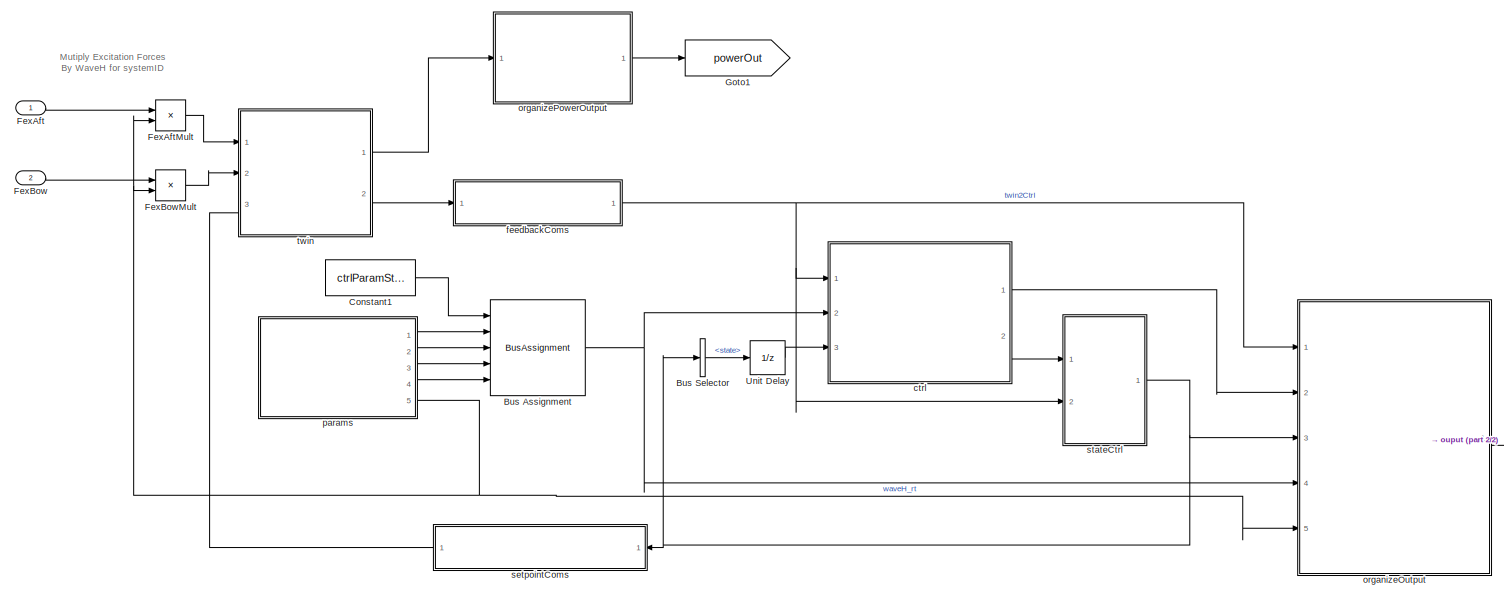
[diagram: root canvas - part 1/2, most of the canvas]
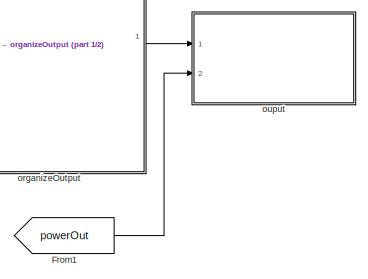
[diagram: root canvas - part 2/2, bottom right region]
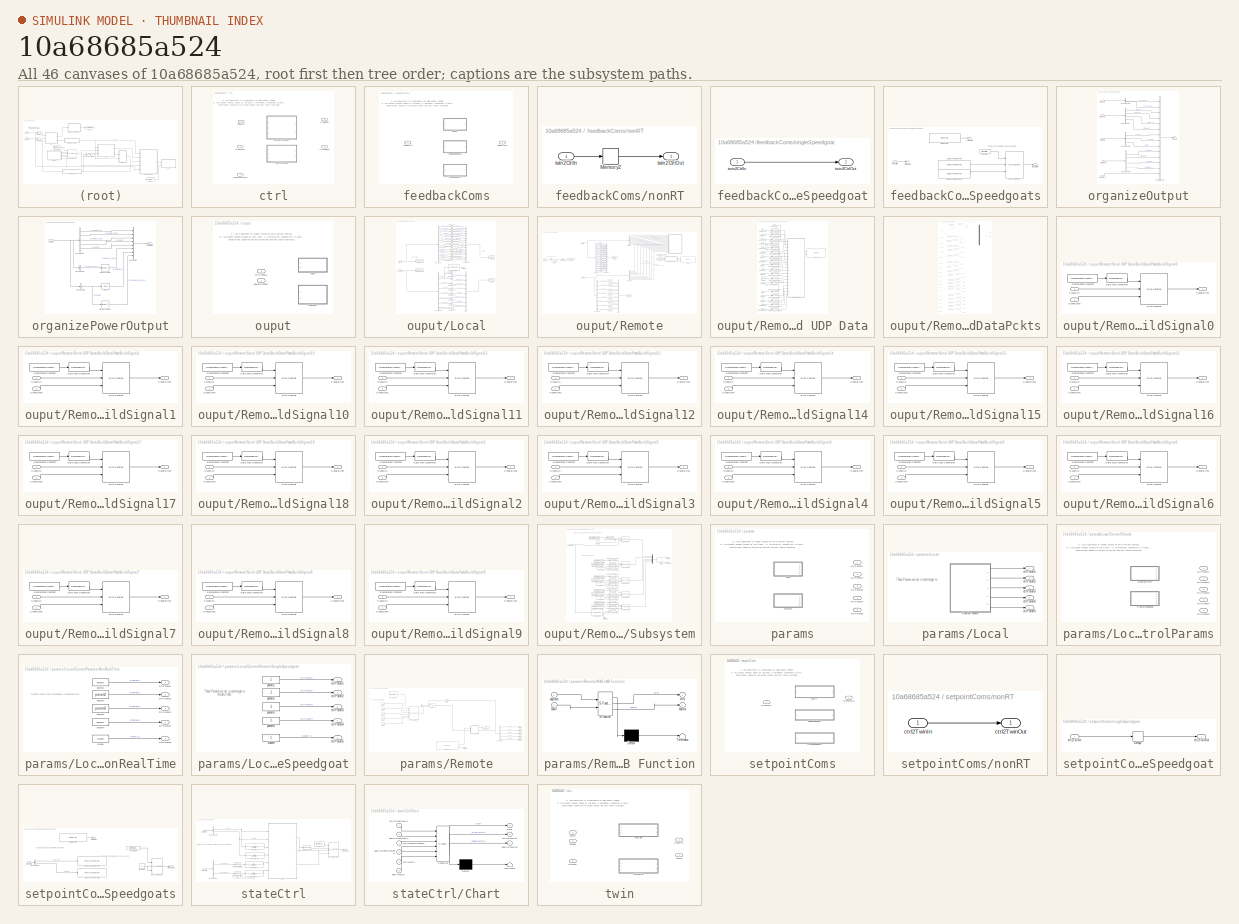
[diagram: thumbnail index - all 46 canvases of the model, root first then tree order]
MODEL slx_10a68685a524
KIND model
CONFIG AbsTol = auto
CONFIG EnableMultiTasking = off
CONFIG FixedStep = Ts
CONFIG MaxStep = auto
CONFIG MinStep = auto
CONFIG RelTol = 1e-3
CONFIG SampleTimeConstraint = Unconstrained
CONFIG SolverName = FixedStepAuto
CONFIG StartTime = 0.0
CONFIG StopTime = 300
BLOCK [BusAssignment] Bus Assignment
  AssignedSignals = ctrlParam1,ctrlParam2,ctrlParam3,ctrlParam4
  Ports = [5, 1]
BLOCK [BusSelector] Bus Selector
  OutputSignals = state
  Ports = [1, 1]
BLOCK [Constant] Constant1
  OutDataTypeStr = Bus: ctrlParamBus
  Value = ctrlParamStruct
  VectorParams1D = off
BLOCK [Inport] FexAft
  Interpolate = off
BLOCK [Product] FexAftMult
  Ports = [2, 1]
BLOCK [Inport] FexBow
  Interpolate = off
  Port = 2
BLOCK [Product] FexBowMult
  Ports = [2, 1]
BLOCK [From] From1
  GotoTag = powerOut
BLOCK [Goto] Goto1
  GotoTag = powerOut
BLOCK [UnitDelay] Unit Delay
  HasFrameUpgradeWarning = on
  SampleTime = -1
BLOCK [SubSystem] ctrl
  LabelModeActiveChoice = defaultCtrlModel
  Ports = [3, 2]
  RequestExecContextInheritance = off
  Variant = on
  VariantControlMode = label
BLOCK [Outport] ctrl/ctrl2TwinOut
  OutDataTypeStr = Bus: ctrl2TwinBus
  Port = 2
BLOCK [Inport] ctrl/ctrlParams
  OutDataTypeStr = Bus: ctrlParamBus
  Port = 2
BLOCK [Outport] ctrl/ctrlSignals
  OutDataTypeStr = Bus: ctrlSignalBus
BLOCK [ModelReference] ctrl/defaultCtrlModel
  ModelNameDialog = defaultCtrlModel
  ModelReferenceVersion = 4.639
  OverrideUsingVariant = defaultCtrlModel
  Ports = [3, 2]
  VariantControl = defaultCtrlModel
BLOCK [Inport] ctrl/supervisorState
  OutDataTypeStr = int32
  Port = 3
BLOCK [Inport] ctrl/twin2Ctrl
  OutDataTypeStr = Bus: twin2CtrlBus
BLOCK [ModelReference] ctrl/userCtrlModel
  ModelNameDialog = ctrlStarter
  ModelReferenceVersion = 3.21
  Ports = [3, 2]
  VariantControl = userCtrlModel
BLOCK [SubSystem] feedbackComs
  LabelModeActiveChoice = nonRT
  Ports = [1, 1]
  RequestExecContextInheritance = off
  Variant = on
  VariantControlMode = label
BLOCK [SubSystem] feedbackComs/nonRT
  Ports = [1, 1]
  RequestExecContextInheritance = off
  VariantControl = nonRT
BLOCK [Memory] feedbackComs/nonRT/Memory2
BLOCK [Inport] feedbackComs/nonRT/twin2CtrlIn
  OutDataTypeStr = Bus: twin2CtrlBus
BLOCK [Outport] feedbackComs/nonRT/twin2CtrlOut
  OutDataTypeStr = Bus: twin2CtrlBus
BLOCK [SubSystem] feedbackComs/singleSpeedgoat
  Ports = [1, 1]
  RequestExecContextInheritance = off
  VariantControl = singleSpeedgoat
BLOCK [Inport] feedbackComs/singleSpeedgoat/twin2CtrlIn
  OutDataTypeStr = Bus: twin2CtrlBus
BLOCK [Outport] feedbackComs/singleSpeedgoat/twin2CtrlOut
  OutDataTypeStr = Bus: twin2CtrlBus
BLOCK [Inport] feedbackComs/twin2CtrlIn
  OutDataTypeStr = Bus: twin2CtrlBus
BLOCK [Outport] feedbackComs/twin2CtrlOut
  OutDataTypeStr = Bus: twin2CtrlBus
BLOCK [SubSystem] feedbackComs/twoSpeedgoats
  Ports = [1, 1]
  RequestExecContextInheritance = off
  VariantControl = twoSpeedgoats
BLOCK [BusAssignment] feedbackComs/twoSpeedgoats/Bus Assignment
  AssignedSignals = posFlapBow,posFlapAft
  Ports = [3, 1]
BLOCK [Constant] feedbackComs/twoSpeedgoats/Constant
  OutDataTypeStr = Bus: twin2CtrlBus
  Value = twin2CtrlStruct
BLOCK [Reference] feedbackComs/twoSpeedgoats/EtherCAT Init  REF=slrealtimeethercatlib/EtherCAT Init
  Ports = [0, 1]
  Priority = 0
  SourceBlock = slrealtimeethercatlib/EtherCAT Init
  SourceProductBaseCode = XP
  SourceType = ethercatinit
BLOCK [Reference] feedbackComs/twoSpeedgoats/EtherCAT PDO Receive  REF=slrealtimeethercatlib/EtherCAT PDO Receive
  Ports = [0, 1]
  Priority = 2
  SourceBlock = slrealtimeethercatlib/EtherCAT PDO Receive
  SourceProductBaseCode = XP
  SourceType = ethercat_pdo_receive
BLOCK [Reference] feedbackComs/twoSpeedgoats/EtherCAT PDO Receive1  REF=slrealtimeethercatlib/EtherCAT PDO Receive
  Ports = [0, 1]
  Priority = 2
  SourceBlock = slrealtimeethercatlib/EtherCAT PDO Receive
  SourceProductBaseCode = XP
  SourceType = ethercat_pdo_receive
BLOCK [Terminator] feedbackComs/twoSpeedgoats/Terminator
BLOCK [Terminator] feedbackComs/twoSpeedgoats/Terminator1
BLOCK [Inport] feedbackComs/twoSpeedgoats/twin2CtrlIn
  OutDataTypeStr = Bus: twin2CtrlBus
BLOCK [Outport] feedbackComs/twoSpeedgoats/twin2CtrlOut
BLOCK [SubSystem] organizeOutput
  Ports = [5, 1]
  RequestExecContextInheritance = off
BLOCK [BusSelector] organizeOutput/Bus Selector
  OutputSignals = ctrlSignal1,ctrlSignal2,ctrlSignal3,ctrlSignal4
  Ports = [1, 4]
BLOCK [BusSelector] organizeOutput/Bus Selector2
  OutputSignals = curAft,curBow,state
  Ports = [1, 3]
BLOCK [BusSelector] organizeOutput/Bus Selector3
  OutputSignals = posFlapAft,posFlapBow
  Ports = [1, 2]
BLOCK [BusSelector] organizeOutput/Bus Selector4
  OutputSignals = ctrlParam1,ctrlParam2,ctrlParam3,ctrlParam4
  Ports = [1, 4]
BLOCK [BusCreator] organizeOutput/ControlSignals
  DisplayOption = bar
  InheritFromInputs = on
  Inputs = 14
  Ports = [14, 1]
BLOCK [Inport] organizeOutput/ctrl2Twin
  Port = 3
BLOCK [Inport] organizeOutput/ctrlParams
  Port = 4
BLOCK [Inport] organizeOutput/ctrlSignals
  OutDataTypeStr = Bus: ctrlSignalBus
  Port = 2
BLOCK [Outport] organizeOutput/signals
BLOCK [Inport] organizeOutput/twin2Ctrl
  OutDataTypeStr = Bus: twin2CtrlBus
BLOCK [Inport] organizeOutput/waveH_rt
  Port = 5
BLOCK [SubSystem] organizePowerOutput
  Ports = [1, 1]
  RequestExecContextInheritance = off
BLOCK [BusCreator] organizePowerOutput/Bus Creator
  DisplayOption = bar
  InheritFromInputs = on
  Inputs = 8
  Ports = [8, 1]
BLOCK [BusSelector] organizePowerOutput/Bus Selector
  OutputSignals = powerMechAft,powerMechBow,powerMechTotal,powerI2R,powerNet
  Ports = [1, 5]
BLOCK [BusSelector] organizePowerOutput/Bus Selector1
  OutputSignals = powerMechTotal
  Ports = [1, 1]
BLOCK [BusSelector] organizePowerOutput/Bus Selector2
  OutputSignals = powerNet
  Ports = [1, 1]
BLOCK [Reference] organizePowerOutput/Mean  REF=dspstat3/Mean
  Ports = [1, 1]
  SourceBlock = dspstat3/Mean
  SourceProductBaseCode = DS
  SourceType = Mean
  UserDataPersistent = on
BLOCK [Reference] organizePowerOutput/Moving Average  REF=dspstat3/Moving
Average
  Ports = [1, 1]
  SourceBlock = dspstat3/Moving\nAverage
  SourceProductBaseCode = DS
  SourceType = dsp.simulink.MovingAverage
BLOCK [Reference] organizePowerOutput/Moving Average1  REF=dspstat3/Moving
Average
  Ports = [1, 1]
  SourceBlock = dspstat3/Moving\nAverage
  SourceProductBaseCode = DS
  SourceType = dsp.simulink.MovingAverage
BLOCK [Inport] organizePowerOutput/powerIn
  OutDataTypeStr = Bus: powerBus
BLOCK [Outport] organizePowerOutput/powerOut
BLOCK [SubSystem] ouput
  LabelModeActiveChoice = Local
  Ports = [2]
  RequestExecContextInheritance = off
  Variant = on
  VariantControlMode = label
BLOCK [SubSystem] ouput/Local
  Ports = [2]
  RequestExecContextInheritance = off
  VariantControl = Local
BLOCK [BusSelector] ouput/Local/Bus Selector
  OutputSignals = posFlapAft,posFlapBow,ctrlSignal1,ctrlSignal2,ctrlSignal3,ctrlSignal4,curAft,curBow,state,ctrlParam1,ctrlParam2,ctrlParam3,ctrlParam4,waveH_rt
  Ports = [1, 14]
BLOCK [BusSelector] ouput/Local/Bus Selector1
  OutputSignals = powerMechAft,powerMechBow,powerMechTotal,powerI2R,powerNet,powerMechAverage,powerNetMean,powerNetMovingAverage
  Ports = [1, 8]
BLOCK [BusCreator] ouput/Local/ControlSignals
  DisplayOption = bar
  InheritFromInputs = on
  Inputs = 14
  NameLocation = right
  Ports = [14, 1]
BLOCK [Reference] ouput/Local/Overload Options  REF=slrealtimetgmanagement/Overload Options
  Ports = [1, 1]
  SourceBlock = slrealtimetgmanagement/Overload Options
  SourceProductBaseCode = XP
  SourceType = slrtOverloadOptions
BLOCK [BusCreator] ouput/Local/Power
  DisplayOption = bar
  InheritFromInputs = on
  Inputs = 8
  NameLocation = right
  Ports = [8, 1]
BLOCK [SignalConversion] ouput/Local/Signal Copy1
  OverrideOpt = off
BLOCK [SignalConversion] ouput/Local/Signal Copy10
  OverrideOpt = off
BLOCK [SignalConversion] ouput/Local/Signal Copy11
  OverrideOpt = off
BLOCK [SignalConversion] ouput/Local/Signal Copy12
  OverrideOpt = off
BLOCK [SignalConversion] ouput/Local/Signal Copy13
  OverrideOpt = off
BLOCK [SignalConversion] ouput/Local/Signal Copy14
  OverrideOpt = off
BLOCK [SignalConversion] ouput/Local/Signal Copy16
  OverrideOpt = off
BLOCK [SignalConversion] ouput/Local/Signal Copy17
  OverrideOpt = off
BLOCK [SignalConversion] ouput/Local/Signal Copy18
  OverrideOpt = off
BLOCK [SignalConversion] ouput/Local/Signal Copy19
  OverrideOpt = off
BLOCK [SignalConversion] ouput/Local/Signal Copy2
  OverrideOpt = off
BLOCK [SignalConversion] ouput/Local/Signal Copy20
  OverrideOpt = off
BLOCK [SignalConversion] ouput/Local/Signal Copy21
  OverrideOpt = off
BLOCK [SignalConversion] ouput/Local/Signal Copy22
  OverrideOpt = off
BLOCK [SignalConversion] ouput/Local/Signal Copy23
  OverrideOpt = off
BLOCK [SignalConversion] ouput/Local/Signal Copy3
  OverrideOpt = off
BLOCK [SignalConversion] ouput/Local/Signal Copy4
  OverrideOpt = off
BLOCK [SignalConversion] ouput/Local/Signal Copy5
  OverrideOpt = off
BLOCK [SignalConversion] ouput/Local/Signal Copy6
  OverrideOpt = off
BLOCK [SignalConversion] ouput/Local/Signal Copy7
  OverrideOpt = off
BLOCK [SignalConversion] ouput/Local/Signal Copy8
  OverrideOpt = off
BLOCK [SignalConversion] ouput/Local/Signal Copy9
  OverrideOpt = off
BLOCK [Terminator] ouput/Local/Terminator
BLOCK [ToWorkspace] ouput/Local/To Workspace
  FixptAsFi = on
  MaxDataPoints = inf
  Ports = [1]
  SampleTime = -1
  SaveFormat = Timeseries
  VariableName = ControlSignals
BLOCK [ToWorkspace] ouput/Local/To Workspace1
  FixptAsFi = on
  MaxDataPoints = inf
  Ports = [1]
  SampleTime = -1
  SaveFormat = Timeseries
  VariableName = Power
BLOCK [Reference] ouput/Local/control  REF=slrealtimeloglib/File Log
  Ports = [1]
  SourceBlock = slrealtimeloglib/File Log
  SourceProductBaseCode = XP
  SourceType = slrealtimeloggingblock
BLOCK [Inport] ouput/Local/ctrlSignals
BLOCK [Reference] ouput/Local/power  REF=slrealtimeloglib/File Log
  Ports = [1]
  SourceBlock = slrealtimeloglib/File Log
  SourceProductBaseCode = XP
  SourceType = slrealtimeloggingblock
BLOCK [Inport] ouput/Local/powerSignals
  Port = 2
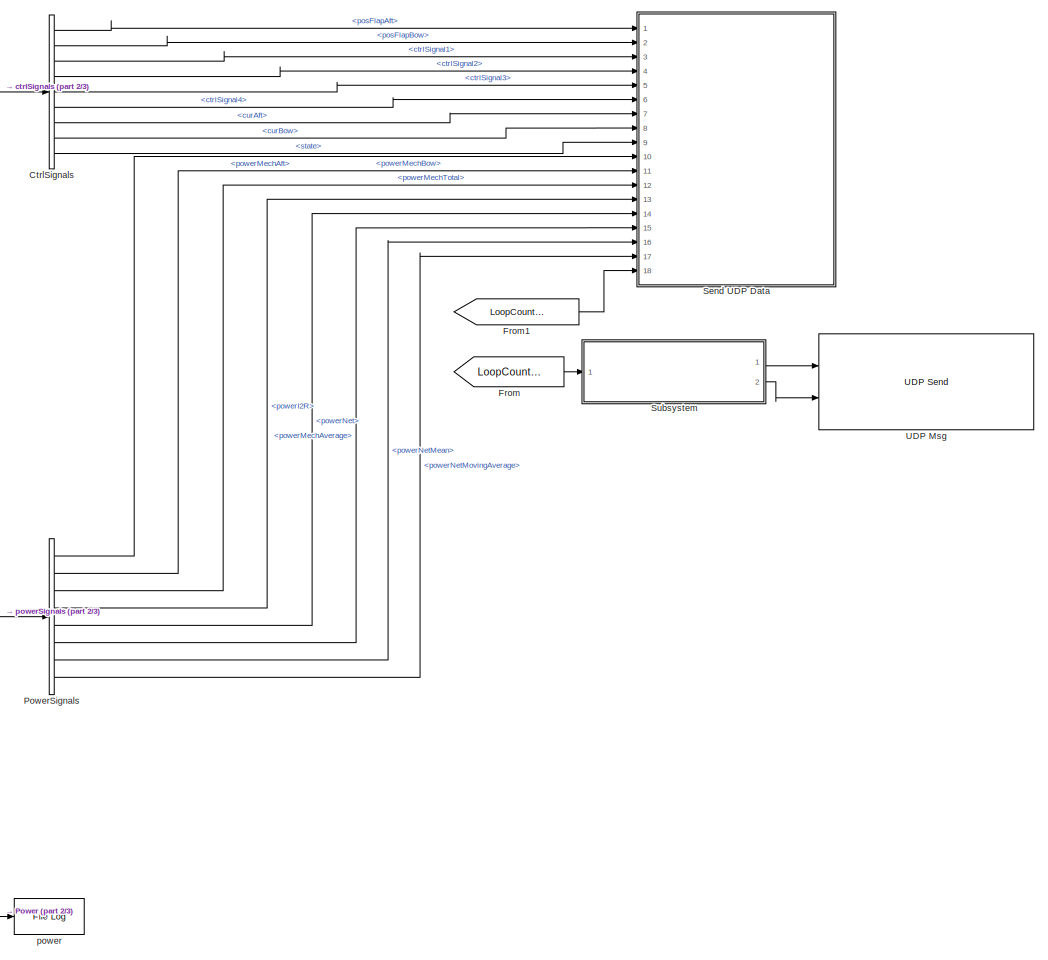
[diagram: ouput/Remote - part 1/3, right side, full height]
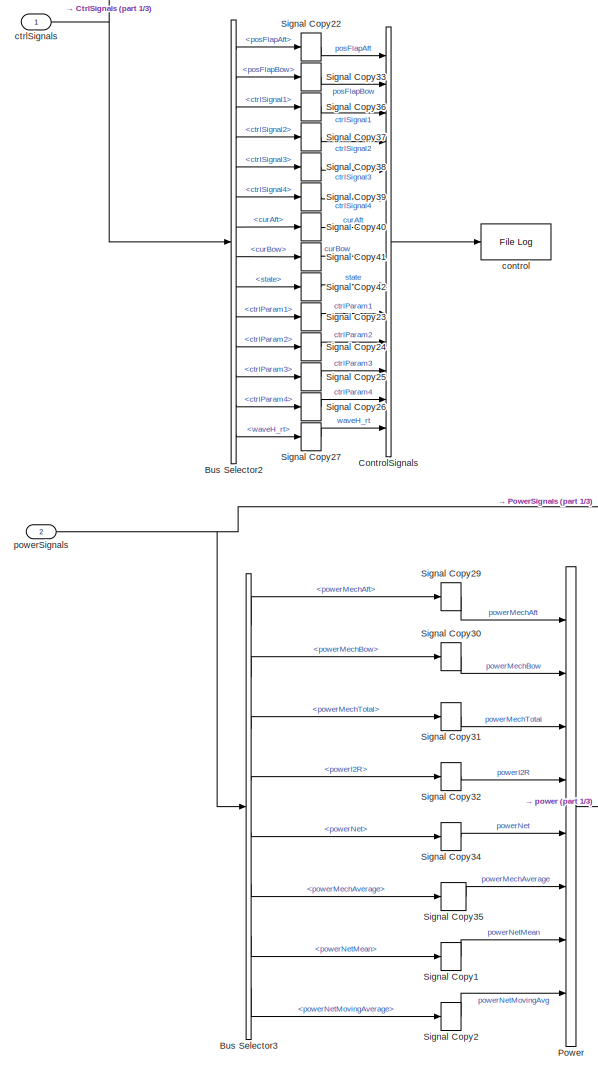
[diagram: ouput/Remote - part 2/3, center side, full height]
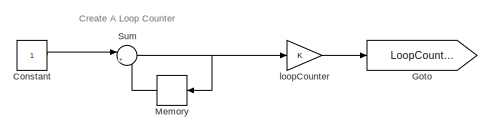
[diagram: ouput/Remote - part 3/3, middle left region]
BLOCK [SubSystem] ouput/Remote
  Ports = [2]
  RequestExecContextInheritance = off
  VariantControl = Remote
BLOCK [BusSelector] ouput/Remote/Bus Selector2
  OutputSignals = posFlapAft,posFlapBow,ctrlSignal1,ctrlSignal2,ctrlSignal3,ctrlSignal4,curAft,curBow,state,ctrlParam1,ctrlParam2,ctrlParam3,ctrlParam4,waveH_rt
  Ports = [1, 14]
BLOCK [BusSelector] ouput/Remote/Bus Selector3
  OutputSignals = powerMechAft,powerMechBow,powerMechTotal,powerI2R,powerNet,powerMechAverage,powerNetMean,powerNetMovingAverage
  Ports = [1, 8]
BLOCK [Constant] ouput/Remote/Constant
  SampleTime = Ts
BLOCK [BusCreator] ouput/Remote/ControlSignals
  DisplayOption = bar
  InheritFromInputs = on
  Inputs = 14
  NameLocation = right
  Ports = [14, 1]
BLOCK [BusSelector] ouput/Remote/CtrlSignals
  OutputSignals = posFlapAft,posFlapBow,ctrlSignal1,ctrlSignal2,ctrlSignal3,ctrlSignal4,curAft,curBow,state
  Ports = [1, 9]
BLOCK [From] ouput/Remote/From
  GotoTag = LoopCounter
BLOCK [From] ouput/Remote/From1
  GotoTag = LoopCounter
BLOCK [Goto] ouput/Remote/Goto
  GotoTag = LoopCounter
BLOCK [Memory] ouput/Remote/Memory
BLOCK [BusCreator] ouput/Remote/Power
  DisplayOption = bar
  InheritFromInputs = on
  Inputs = 8
  NameLocation = right
  Ports = [8, 1]
BLOCK [BusSelector] ouput/Remote/PowerSignals
  OutputSignals = powerMechAft,powerMechBow,powerMechTotal,powerI2R,powerNet,powerMechAverage,powerNetMean,powerNetMovingAverage
  Ports = [1, 8]
BLOCK [SubSystem] ouput/Remote/Send UDP Data
  Ports = [18]
  RequestExecContextInheritance = off
BLOCK [Inport] ouput/Remote/Send UDP Data/AftPower
  Port = 10
BLOCK [Inport] ouput/Remote/Send UDP Data/AvgPower
  Port = 15
BLOCK [Inport] ouput/Remote/Send UDP Data/BowPower
  Port = 11
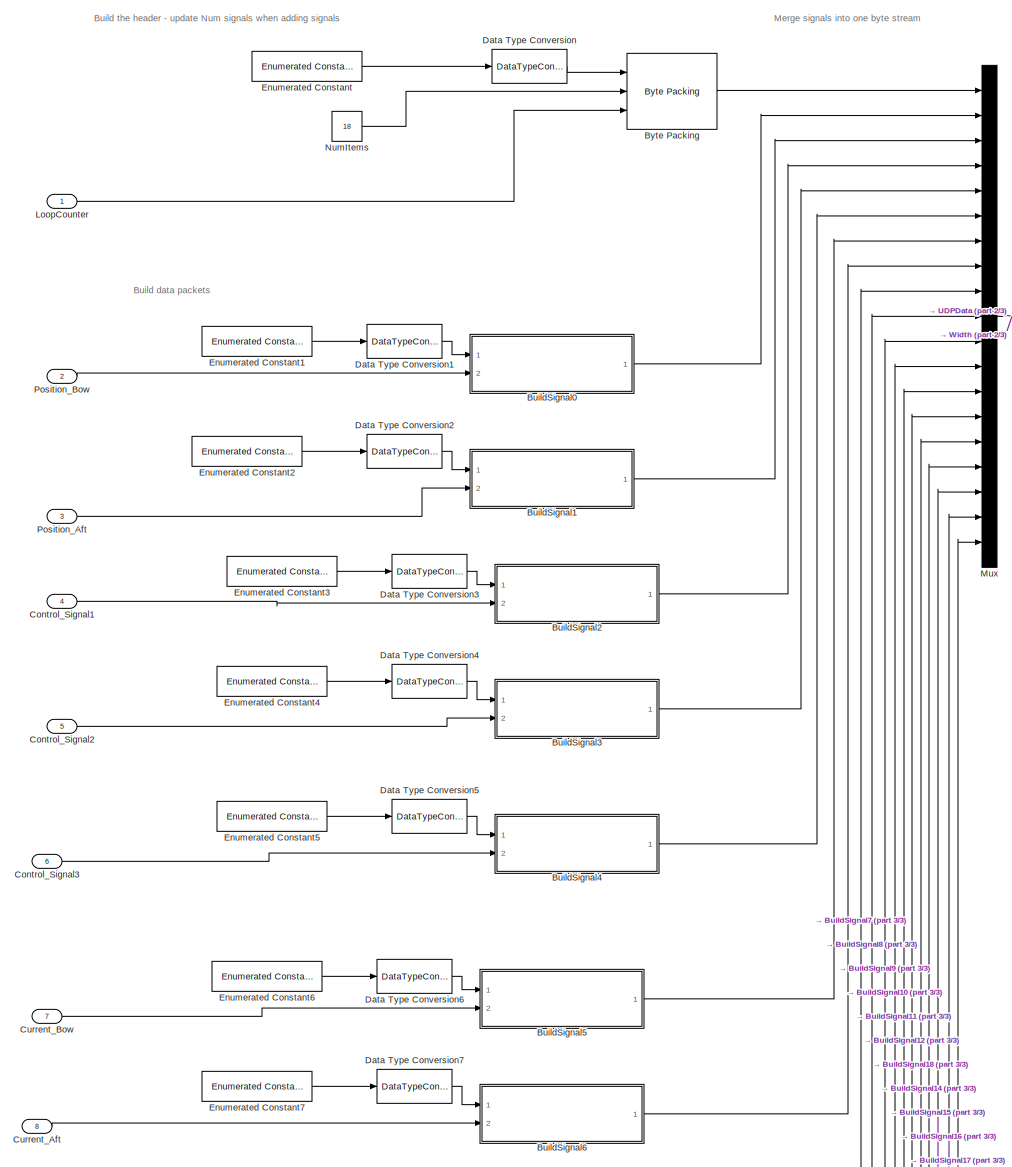
[diagram: ouput/Remote/Send UDP Data/BuildDataPckts - part 1/3, full width, top band]
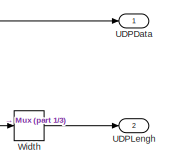
[diagram: ouput/Remote/Send UDP Data/BuildDataPckts - part 2/3, top right region]
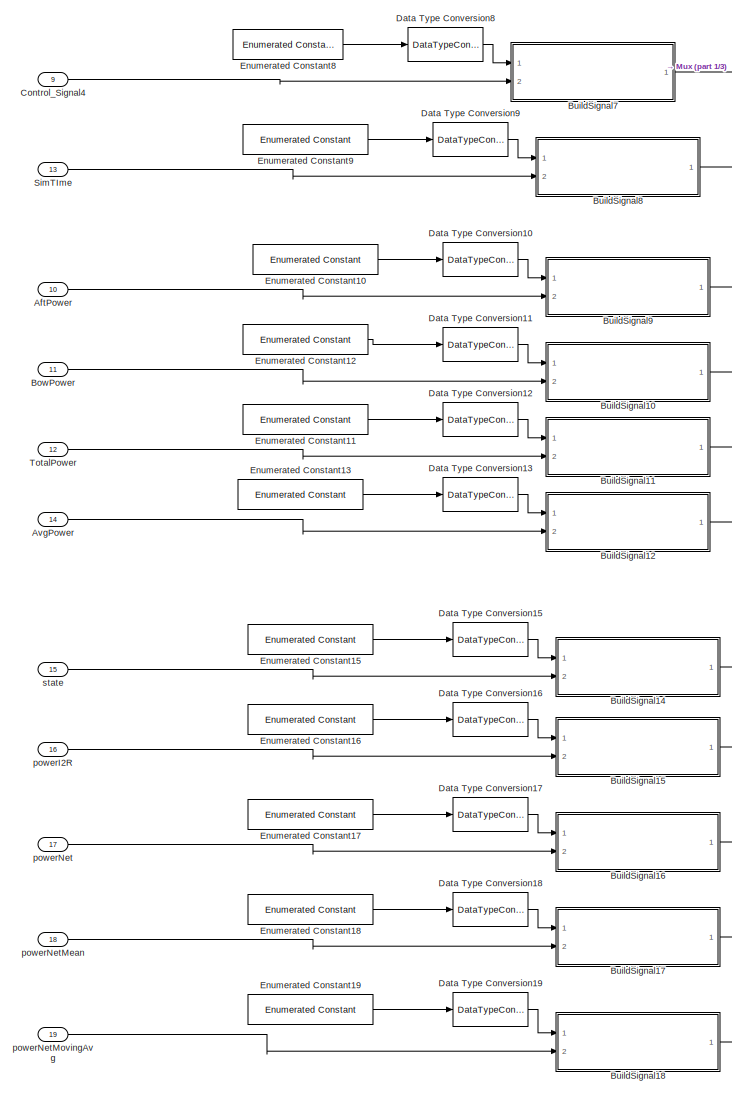
[diagram: ouput/Remote/Send UDP Data/BuildDataPckts - part 3/3, bottom left region]
BLOCK [SubSystem] ouput/Remote/Send UDP Data/BuildDataPckts
  Ports = [19, 2]
  RequestExecContextInheritance = off
BLOCK [Inport] ouput/Remote/Send UDP Data/BuildDataPckts/AftPower
  Port = 10
BLOCK [Inport] ouput/Remote/Send UDP Data/BuildDataPckts/AvgPower
  Port = 14
BLOCK [Inport] ouput/Remote/Send UDP Data/BuildDataPckts/BowPower
  Port = 11
BLOCK [SubSystem] ouput/Remote/Send UDP Data/BuildDataPckts/BuildSignal0
  Ports = [2, 1]
  RequestExecContextInheritance = off
BLOCK [Reference] ouput/Remote/Send UDP Data/BuildDataPckts/BuildSignal0/Byte Packing   REF=slrealtimeutilitieslib/Byte Packing
  Ports = [3, 1]
  SourceBlock = slrealtimeutilitieslib/Byte Packing
  SourceProductBaseCode = XP
  SourceType = slrealtimebytepacking
BLOCK [DataTypeConversion] ouput/Remote/Send UDP Data/BuildDataPckts/BuildSignal0/Data Type Conversion
  OutDataTypeStr = uint8
  RndMeth = Floor
  SaturateOnIntegerOverflow = off
BLOCK [Reference] ouput/Remote/Send UDP Data/BuildDataPckts/BuildSignal0/Enumerated Constant  REF=simulink/Sources/Enumerated
Constant
  Ports = [0, 1]
  SourceBlock = simulink/Sources/Enumerated\nConstant
  SourceProductBaseCode = SL
  SourceType = Enumerated Constant
BLOCK [Outport] ouput/Remote/Send UDP Data/BuildDataPckts/BuildSignal0/SignalBytes
BLOCK [Inport] ouput/Remote/Send UDP Data/BuildDataPckts/BuildSignal0/SignalData
  Port = 2
BLOCK [Inport] ouput/Remote/Send UDP Data/BuildDataPckts/BuildSignal0/SignalNo
BLOCK [SubSystem] ouput/Remote/Send UDP Data/BuildDataPckts/BuildSignal1
  Ports = [2, 1]
  RequestExecContextInheritance = off
BLOCK [Reference] ouput/Remote/Send UDP Data/BuildDataPckts/BuildSignal1/Byte Packing   REF=slrealtimeutilitieslib/Byte Packing
  Ports = [3, 1]
  SourceBlock = slrealtimeutilitieslib/Byte Packing
  SourceProductBaseCode = XP
  SourceType = slrealtimebytepacking
BLOCK [DataTypeConversion] ouput/Remote/Send UDP Data/BuildDataPckts/BuildSignal1/Data Type Conversion
  OutDataTypeStr = uint8
  RndMeth = Floor
  SaturateOnIntegerOverflow = off
BLOCK [Reference] ouput/Remote/Send UDP Data/BuildDataPckts/BuildSignal1/Enumerated Constant  REF=simulink/Sources/Enumerated
Constant
  Ports = [0, 1]
  SourceBlock = simulink/Sources/Enumerated\nConstant
  SourceProductBaseCode = SL
  SourceType = Enumerated Constant
BLOCK [Outport] ouput/Remote/Send UDP Data/BuildDataPckts/BuildSignal1/SignalBytes
BLOCK [Inport] ouput/Remote/Send UDP Data/BuildDataPckts/BuildSignal1/SignalData
  Port = 2
BLOCK [Inport] ouput/Remote/Send UDP Data/BuildDataPckts/BuildSignal1/SignalNo
BLOCK [SubSystem] ouput/Remote/Send UDP Data/BuildDataPckts/BuildSignal10
  Ports = [2, 1]
  RequestExecContextInheritance = off
BLOCK [Reference] ouput/Remote/Send UDP Data/BuildDataPckts/BuildSignal10/Byte Packing   REF=slrealtimeutilitieslib/Byte Packing
  Ports = [3, 1]
  SourceBlock = slrealtimeutilitieslib/Byte Packing
  SourceProductBaseCode = XP
  SourceType = slrealtimebytepacking
BLOCK [DataTypeConversion] ouput/Remote/Send UDP Data/BuildDataPckts/BuildSignal10/Data Type Conversion
  OutDataTypeStr = uint8
  RndMeth = Floor
  SaturateOnIntegerOverflow = off
BLOCK [Reference] ouput/Remote/Send UDP Data/BuildDataPckts/BuildSignal10/Enumerated Constant  REF=simulink/Sources/Enumerated
Constant
  Ports = [0, 1]
  SourceBlock = simulink/Sources/Enumerated\nConstant
  SourceProductBaseCode = SL
  SourceType = Enumerated Constant
BLOCK [Outport] ouput/Remote/Send UDP Data/BuildDataPckts/BuildSignal10/SignalBytes
BLOCK [Inport] ouput/Remote/Send UDP Data/BuildDataPckts/BuildSignal10/SignalData
  Port = 2
BLOCK [Inport] ouput/Remote/Send UDP Data/BuildDataPckts/BuildSignal10/SignalNo
BLOCK [SubSystem] ouput/Remote/Send UDP Data/BuildDataPckts/BuildSignal11
  Ports = [2, 1]
  RequestExecContextInheritance = off
BLOCK [Reference] ouput/Remote/Send UDP Data/BuildDataPckts/BuildSignal11/Byte Packing   REF=slrealtimeutilitieslib/Byte Packing
  Ports = [3, 1]
  SourceBlock = slrealtimeutilitieslib/Byte Packing
  SourceProductBaseCode = XP
  SourceType = slrealtimebytepacking
BLOCK [DataTypeConversion] ouput/Remote/Send UDP Data/BuildDataPckts/BuildSignal11/Data Type Conversion
  OutDataTypeStr = uint8
  RndMeth = Floor
  SaturateOnIntegerOverflow = off
BLOCK [Reference] ouput/Remote/Send UDP Data/BuildDataPckts/BuildSignal11/Enumerated Constant  REF=simulink/Sources/Enumerated
Constant
  Ports = [0, 1]
  SourceBlock = simulink/Sources/Enumerated\nConstant
  SourceProductBaseCode = SL
  SourceType = Enumerated Constant
BLOCK [Outport] ouput/Remote/Send UDP Data/BuildDataPckts/BuildSignal11/SignalBytes
BLOCK [Inport] ouput/Remote/Send UDP Data/BuildDataPckts/BuildSignal11/SignalData
  Port = 2
BLOCK [Inport] ouput/Remote/Send UDP Data/BuildDataPckts/BuildSignal11/SignalNo
BLOCK [SubSystem] ouput/Remote/Send UDP Data/BuildDataPckts/BuildSignal12
  Ports = [2, 1]
  RequestExecContextInheritance = off
BLOCK [Reference] ouput/Remote/Send UDP Data/BuildDataPckts/BuildSignal12/Byte Packing   REF=slrealtimeutilitieslib/Byte Packing
  Ports = [3, 1]
  SourceBlock = slrealtimeutilitieslib/Byte Packing
  SourceProductBaseCode = XP
  SourceType = slrealtimebytepacking
BLOCK [DataTypeConversion] ouput/Remote/Send UDP Data/BuildDataPckts/BuildSignal12/Data Type Conversion
  OutDataTypeStr = uint8
  RndMeth = Floor
  SaturateOnIntegerOverflow = off
BLOCK [Reference] ouput/Remote/Send UDP Data/BuildDataPckts/BuildSignal12/Enumerated Constant  REF=simulink/Sources/Enumerated
Constant
  Ports = [0, 1]
  SourceBlock = simulink/Sources/Enumerated\nConstant
  SourceProductBaseCode = SL
  SourceType = Enumerated Constant
BLOCK [Outport] ouput/Remote/Send UDP Data/BuildDataPckts/BuildSignal12/SignalBytes
BLOCK [Inport] ouput/Remote/Send UDP Data/BuildDataPckts/BuildSignal12/SignalData
  Port = 2
BLOCK [Inport] ouput/Remote/Send UDP Data/BuildDataPckts/BuildSignal12/SignalNo
BLOCK [SubSystem] ouput/Remote/Send UDP Data/BuildDataPckts/BuildSignal14
  Ports = [2, 1]
  RequestExecContextInheritance = off
BLOCK [Reference] ouput/Remote/Send UDP Data/BuildDataPckts/BuildSignal14/Byte Packing   REF=slrealtimeutilitieslib/Byte Packing
  Ports = [3, 1]
  SourceBlock = slrealtimeutilitieslib/Byte Packing
  SourceProductBaseCode = XP
  SourceType = slrealtimebytepacking
BLOCK [DataTypeConversion] ouput/Remote/Send UDP Data/BuildDataPckts/BuildSignal14/Data Type Conversion
  OutDataTypeStr = uint8
  RndMeth = Floor
  SaturateOnIntegerOverflow = off
BLOCK [Reference] ouput/Remote/Send UDP Data/BuildDataPckts/BuildSignal14/Enumerated Constant  REF=simulink/Sources/Enumerated
Constant
  Ports = [0, 1]
  SourceBlock = simulink/Sources/Enumerated\nConstant
  SourceProductBaseCode = SL
  SourceType = Enumerated Constant
BLOCK [Outport] ouput/Remote/Send UDP Data/BuildDataPckts/BuildSignal14/SignalBytes
BLOCK [Inport] ouput/Remote/Send UDP Data/BuildDataPckts/BuildSignal14/SignalData
  Port = 2
BLOCK [Inport] ouput/Remote/Send UDP Data/BuildDataPckts/BuildSignal14/SignalNo
BLOCK [SubSystem] ouput/Remote/Send UDP Data/BuildDataPckts/BuildSignal15
  Ports = [2, 1]
  RequestExecContextInheritance = off
BLOCK [Reference] ouput/Remote/Send UDP Data/BuildDataPckts/BuildSignal15/Byte Packing   REF=slrealtimeutilitieslib/Byte Packing
  Ports = [3, 1]
  SourceBlock = slrealtimeutilitieslib/Byte Packing
  SourceProductBaseCode = XP
  SourceType = slrealtimebytepacking
BLOCK [DataTypeConversion] ouput/Remote/Send UDP Data/BuildDataPckts/BuildSignal15/Data Type Conversion
  OutDataTypeStr = uint8
  RndMeth = Floor
  SaturateOnIntegerOverflow = off
BLOCK [Reference] ouput/Remote/Send UDP Data/BuildDataPckts/BuildSignal15/Enumerated Constant  REF=simulink/Sources/Enumerated
Constant
  Ports = [0, 1]
  SourceBlock = simulink/Sources/Enumerated\nConstant
  SourceProductBaseCode = SL
  SourceType = Enumerated Constant
BLOCK [Outport] ouput/Remote/Send UDP Data/BuildDataPckts/BuildSignal15/SignalBytes
BLOCK [Inport] ouput/Remote/Send UDP Data/BuildDataPckts/BuildSignal15/SignalData
  Port = 2
BLOCK [Inport] ouput/Remote/Send UDP Data/BuildDataPckts/BuildSignal15/SignalNo
BLOCK [SubSystem] ouput/Remote/Send UDP Data/BuildDataPckts/BuildSignal16
  Ports = [2, 1]
  RequestExecContextInheritance = off
BLOCK [Reference] ouput/Remote/Send UDP Data/BuildDataPckts/BuildSignal16/Byte Packing   REF=slrealtimeutilitieslib/Byte Packing
  Ports = [3, 1]
  SourceBlock = slrealtimeutilitieslib/Byte Packing
  SourceProductBaseCode = XP
  SourceType = slrealtimebytepacking
BLOCK [DataTypeConversion] ouput/Remote/Send UDP Data/BuildDataPckts/BuildSignal16/Data Type Conversion
  OutDataTypeStr = uint8
  RndMeth = Floor
  SaturateOnIntegerOverflow = off
BLOCK [Reference] ouput/Remote/Send UDP Data/BuildDataPckts/BuildSignal16/Enumerated Constant  REF=simulink/Sources/Enumerated
Constant
  Ports = [0, 1]
  SourceBlock = simulink/Sources/Enumerated\nConstant
  SourceProductBaseCode = SL
  SourceType = Enumerated Constant
BLOCK [Outport] ouput/Remote/Send UDP Data/BuildDataPckts/BuildSignal16/SignalBytes
BLOCK [Inport] ouput/Remote/Send UDP Data/BuildDataPckts/BuildSignal16/SignalData
  Port = 2
BLOCK [Inport] ouput/Remote/Send UDP Data/BuildDataPckts/BuildSignal16/SignalNo
BLOCK [SubSystem] ouput/Remote/Send UDP Data/BuildDataPckts/BuildSignal17
  Ports = [2, 1]
  RequestExecContextInheritance = off
BLOCK [Reference] ouput/Remote/Send UDP Data/BuildDataPckts/BuildSignal17/Byte Packing   REF=slrealtimeutilitieslib/Byte Packing
  Ports = [3, 1]
  SourceBlock = slrealtimeutilitieslib/Byte Packing
  SourceProductBaseCode = XP
  SourceType = slrealtimebytepacking
BLOCK [DataTypeConversion] ouput/Remote/Send UDP Data/BuildDataPckts/BuildSignal17/Data Type Conversion
  OutDataTypeStr = uint8
  RndMeth = Floor
  SaturateOnIntegerOverflow = off
BLOCK [Reference] ouput/Remote/Send UDP Data/BuildDataPckts/BuildSignal17/Enumerated Constant  REF=simulink/Sources/Enumerated
Constant
  Ports = [0, 1]
  SourceBlock = simulink/Sources/Enumerated\nConstant
  SourceProductBaseCode = SL
  SourceType = Enumerated Constant
BLOCK [Outport] ouput/Remote/Send UDP Data/BuildDataPckts/BuildSignal17/SignalBytes
BLOCK [Inport] ouput/Remote/Send UDP Data/BuildDataPckts/BuildSignal17/SignalData
  Port = 2
BLOCK [Inport] ouput/Remote/Send UDP Data/BuildDataPckts/BuildSignal17/SignalNo
BLOCK [SubSystem] ouput/Remote/Send UDP Data/BuildDataPckts/BuildSignal18
  Ports = [2, 1]
  RequestExecContextInheritance = off
BLOCK [Reference] ouput/Remote/Send UDP Data/BuildDataPckts/BuildSignal18/Byte Packing   REF=slrealtimeutilitieslib/Byte Packing
  Ports = [3, 1]
  SourceBlock = slrealtimeutilitieslib/Byte Packing
  SourceProductBaseCode = XP
  SourceType = slrealtimebytepacking
BLOCK [DataTypeConversion] ouput/Remote/Send UDP Data/BuildDataPckts/BuildSignal18/Data Type Conversion
  OutDataTypeStr = uint8
  RndMeth = Floor
  SaturateOnIntegerOverflow = off
BLOCK [Reference] ouput/Remote/Send UDP Data/BuildDataPckts/BuildSignal18/Enumerated Constant  REF=simulink/Sources/Enumerated
Constant
  Ports = [0, 1]
  SourceBlock = simulink/Sources/Enumerated\nConstant
  SourceProductBaseCode = SL
  SourceType = Enumerated Constant
BLOCK [Outport] ouput/Remote/Send UDP Data/BuildDataPckts/BuildSignal18/SignalBytes
BLOCK [Inport] ouput/Remote/Send UDP Data/BuildDataPckts/BuildSignal18/SignalData
  Port = 2
BLOCK [Inport] ouput/Remote/Send UDP Data/BuildDataPckts/BuildSignal18/SignalNo
BLOCK [SubSystem] ouput/Remote/Send UDP Data/BuildDataPckts/BuildSignal2
  Ports = [2, 1]
  RequestExecContextInheritance = off
BLOCK [Reference] ouput/Remote/Send UDP Data/BuildDataPckts/BuildSignal2/Byte Packing   REF=slrealtimeutilitieslib/Byte Packing
  Ports = [3, 1]
  SourceBlock = slrealtimeutilitieslib/Byte Packing
  SourceProductBaseCode = XP
  SourceType = slrealtimebytepacking
BLOCK [DataTypeConversion] ouput/Remote/Send UDP Data/BuildDataPckts/BuildSignal2/Data Type Conversion
  OutDataTypeStr = uint8
  RndMeth = Floor
  SaturateOnIntegerOverflow = off
BLOCK [Reference] ouput/Remote/Send UDP Data/BuildDataPckts/BuildSignal2/Enumerated Constant  REF=simulink/Sources/Enumerated
Constant
  Ports = [0, 1]
  SourceBlock = simulink/Sources/Enumerated\nConstant
  SourceProductBaseCode = SL
  SourceType = Enumerated Constant
BLOCK [Outport] ouput/Remote/Send UDP Data/BuildDataPckts/BuildSignal2/SignalBytes
BLOCK [Inport] ouput/Remote/Send UDP Data/BuildDataPckts/BuildSignal2/SignalData
  Port = 2
BLOCK [Inport] ouput/Remote/Send UDP Data/BuildDataPckts/BuildSignal2/SignalNo
BLOCK [SubSystem] ouput/Remote/Send UDP Data/BuildDataPckts/BuildSignal3
  Ports = [2, 1]
  RequestExecContextInheritance = off
BLOCK [Reference] ouput/Remote/Send UDP Data/BuildDataPckts/BuildSignal3/Byte Packing   REF=slrealtimeutilitieslib/Byte Packing
  Ports = [3, 1]
  SourceBlock = slrealtimeutilitieslib/Byte Packing
  SourceProductBaseCode = XP
  SourceType = slrealtimebytepacking
BLOCK [DataTypeConversion] ouput/Remote/Send UDP Data/BuildDataPckts/BuildSignal3/Data Type Conversion
  OutDataTypeStr = uint8
  RndMeth = Floor
  SaturateOnIntegerOverflow = off
BLOCK [Reference] ouput/Remote/Send UDP Data/BuildDataPckts/BuildSignal3/Enumerated Constant  REF=simulink/Sources/Enumerated
Constant
  Ports = [0, 1]
  SourceBlock = simulink/Sources/Enumerated\nConstant
  SourceProductBaseCode = SL
  SourceType = Enumerated Constant
BLOCK [Outport] ouput/Remote/Send UDP Data/BuildDataPckts/BuildSignal3/SignalBytes
BLOCK [Inport] ouput/Remote/Send UDP Data/BuildDataPckts/BuildSignal3/SignalData
  Port = 2
BLOCK [Inport] ouput/Remote/Send UDP Data/BuildDataPckts/BuildSignal3/SignalNo
BLOCK [SubSystem] ouput/Remote/Send UDP Data/BuildDataPckts/BuildSignal4
  Ports = [2, 1]
  RequestExecContextInheritance = off
BLOCK [Reference] ouput/Remote/Send UDP Data/BuildDataPckts/BuildSignal4/Byte Packing   REF=slrealtimeutilitieslib/Byte Packing
  Ports = [3, 1]
  SourceBlock = slrealtimeutilitieslib/Byte Packing
  SourceProductBaseCode = XP
  SourceType = slrealtimebytepacking
BLOCK [DataTypeConversion] ouput/Remote/Send UDP Data/BuildDataPckts/BuildSignal4/Data Type Conversion
  OutDataTypeStr = uint8
  RndMeth = Floor
  SaturateOnIntegerOverflow = off
BLOCK [Reference] ouput/Remote/Send UDP Data/BuildDataPckts/BuildSignal4/Enumerated Constant  REF=simulink/Sources/Enumerated
Constant
  Ports = [0, 1]
  SourceBlock = simulink/Sources/Enumerated\nConstant
  SourceProductBaseCode = SL
  SourceType = Enumerated Constant
BLOCK [Outport] ouput/Remote/Send UDP Data/BuildDataPckts/BuildSignal4/SignalBytes
BLOCK [Inport] ouput/Remote/Send UDP Data/BuildDataPckts/BuildSignal4/SignalData
  Port = 2
BLOCK [Inport] ouput/Remote/Send UDP Data/BuildDataPckts/BuildSignal4/SignalNo
BLOCK [SubSystem] ouput/Remote/Send UDP Data/BuildDataPckts/BuildSignal5
  Ports = [2, 1]
  RequestExecContextInheritance = off
BLOCK [Reference] ouput/Remote/Send UDP Data/BuildDataPckts/BuildSignal5/Byte Packing   REF=slrealtimeutilitieslib/Byte Packing
  Ports = [3, 1]
  SourceBlock = slrealtimeutilitieslib/Byte Packing
  SourceProductBaseCode = XP
  SourceType = slrealtimebytepacking
BLOCK [DataTypeConversion] ouput/Remote/Send UDP Data/BuildDataPckts/BuildSignal5/Data Type Conversion
  OutDataTypeStr = uint8
  RndMeth = Floor
  SaturateOnIntegerOverflow = off
BLOCK [Reference] ouput/Remote/Send UDP Data/BuildDataPckts/BuildSignal5/Enumerated Constant  REF=simulink/Sources/Enumerated
Constant
  Ports = [0, 1]
  SourceBlock = simulink/Sources/Enumerated\nConstant
  SourceProductBaseCode = SL
  SourceType = Enumerated Constant
BLOCK [Outport] ouput/Remote/Send UDP Data/BuildDataPckts/BuildSignal5/SignalBytes
BLOCK [Inport] ouput/Remote/Send UDP Data/BuildDataPckts/BuildSignal5/SignalData
  Port = 2
BLOCK [Inport] ouput/Remote/Send UDP Data/BuildDataPckts/BuildSignal5/SignalNo
BLOCK [SubSystem] ouput/Remote/Send UDP Data/BuildDataPckts/BuildSignal6
  Ports = [2, 1]
  RequestExecContextInheritance = off
BLOCK [Reference] ouput/Remote/Send UDP Data/BuildDataPckts/BuildSignal6/Byte Packing   REF=slrealtimeutilitieslib/Byte Packing
  Ports = [3, 1]
  SourceBlock = slrealtimeutilitieslib/Byte Packing
  SourceProductBaseCode = XP
  SourceType = slrealtimebytepacking
BLOCK [DataTypeConversion] ouput/Remote/Send UDP Data/BuildDataPckts/BuildSignal6/Data Type Conversion
  OutDataTypeStr = uint8
  RndMeth = Floor
  SaturateOnIntegerOverflow = off
BLOCK [Reference] ouput/Remote/Send UDP Data/BuildDataPckts/BuildSignal6/Enumerated Constant  REF=simulink/Sources/Enumerated
Constant
  Ports = [0, 1]
  SourceBlock = simulink/Sources/Enumerated\nConstant
  SourceProductBaseCode = SL
  SourceType = Enumerated Constant
BLOCK [Outport] ouput/Remote/Send UDP Data/BuildDataPckts/BuildSignal6/SignalBytes
BLOCK [Inport] ouput/Remote/Send UDP Data/BuildDataPckts/BuildSignal6/SignalData
  Port = 2
BLOCK [Inport] ouput/Remote/Send UDP Data/BuildDataPckts/BuildSignal6/SignalNo
BLOCK [SubSystem] ouput/Remote/Send UDP Data/BuildDataPckts/BuildSignal7
  Ports = [2, 1]
  RequestExecContextInheritance = off
BLOCK [Reference] ouput/Remote/Send UDP Data/BuildDataPckts/BuildSignal7/Byte Packing   REF=slrealtimeutilitieslib/Byte Packing
  Ports = [3, 1]
  SourceBlock = slrealtimeutilitieslib/Byte Packing
  SourceProductBaseCode = XP
  SourceType = slrealtimebytepacking
BLOCK [DataTypeConversion] ouput/Remote/Send UDP Data/BuildDataPckts/BuildSignal7/Data Type Conversion
  OutDataTypeStr = uint8
  RndMeth = Floor
  SaturateOnIntegerOverflow = off
BLOCK [Reference] ouput/Remote/Send UDP Data/BuildDataPckts/BuildSignal7/Enumerated Constant  REF=simulink/Sources/Enumerated
Constant
  Ports = [0, 1]
  SourceBlock = simulink/Sources/Enumerated\nConstant
  SourceProductBaseCode = SL
  SourceType = Enumerated Constant
BLOCK [Outport] ouput/Remote/Send UDP Data/BuildDataPckts/BuildSignal7/SignalBytes
BLOCK [Inport] ouput/Remote/Send UDP Data/BuildDataPckts/BuildSignal7/SignalData
  Port = 2
BLOCK [Inport] ouput/Remote/Send UDP Data/BuildDataPckts/BuildSignal7/SignalNo
BLOCK [SubSystem] ouput/Remote/Send UDP Data/BuildDataPckts/BuildSignal8
  Ports = [2, 1]
  RequestExecContextInheritance = off
BLOCK [Reference] ouput/Remote/Send UDP Data/BuildDataPckts/BuildSignal8/Byte Packing   REF=slrealtimeutilitieslib/Byte Packing
  Ports = [3, 1]
  SourceBlock = slrealtimeutilitieslib/Byte Packing
  SourceProductBaseCode = XP
  SourceType = slrealtimebytepacking
BLOCK [DataTypeConversion] ouput/Remote/Send UDP Data/BuildDataPckts/BuildSignal8/Data Type Conversion
  OutDataTypeStr = uint8
  RndMeth = Floor
  SaturateOnIntegerOverflow = off
BLOCK [Reference] ouput/Remote/Send UDP Data/BuildDataPckts/BuildSignal8/Enumerated Constant  REF=simulink/Sources/Enumerated
Constant
  Ports = [0, 1]
  SourceBlock = simulink/Sources/Enumerated\nConstant
  SourceProductBaseCode = SL
  SourceType = Enumerated Constant
BLOCK [Outport] ouput/Remote/Send UDP Data/BuildDataPckts/BuildSignal8/SignalBytes
BLOCK [Inport] ouput/Remote/Send UDP Data/BuildDataPckts/BuildSignal8/SignalData
  Port = 2
BLOCK [Inport] ouput/Remote/Send UDP Data/BuildDataPckts/BuildSignal8/SignalNo
BLOCK [SubSystem] ouput/Remote/Send UDP Data/BuildDataPckts/BuildSignal9
  Ports = [2, 1]
  RequestExecContextInheritance = off
BLOCK [Reference] ouput/Remote/Send UDP Data/BuildDataPckts/BuildSignal9/Byte Packing   REF=slrealtimeutilitieslib/Byte Packing
  Ports = [3, 1]
  SourceBlock = slrealtimeutilitieslib/Byte Packing
  SourceProductBaseCode = XP
  SourceType = slrealtimebytepacking
BLOCK [DataTypeConversion] ouput/Remote/Send UDP Data/BuildDataPckts/BuildSignal9/Data Type Conversion
  OutDataTypeStr = uint8
  RndMeth = Floor
  SaturateOnIntegerOverflow = off
BLOCK [Reference] ouput/Remote/Send UDP Data/BuildDataPckts/BuildSignal9/Enumerated Constant  REF=simulink/Sources/Enumerated
Constant
  Ports = [0, 1]
  SourceBlock = simulink/Sources/Enumerated\nConstant
  SourceProductBaseCode = SL
  SourceType = Enumerated Constant
BLOCK [Outport] ouput/Remote/Send UDP Data/BuildDataPckts/BuildSignal9/SignalBytes
BLOCK [Inport] ouput/Remote/Send UDP Data/BuildDataPckts/BuildSignal9/SignalData
  Port = 2
BLOCK [Inport] ouput/Remote/Send UDP Data/BuildDataPckts/BuildSignal9/SignalNo
BLOCK [Reference] ouput/Remote/Send UDP Data/BuildDataPckts/Byte Packing   REF=slrealtimeutilitieslib/Byte Packing
  Ports = [3, 1]
  SourceBlock = slrealtimeutilitieslib/Byte Packing
  SourceProductBaseCode = XP
  SourceType = slrealtimebytepacking
BLOCK [Inport] ouput/Remote/Send UDP Data/BuildDataPckts/Control_Signal1
  OutDataTypeStr = single
  Port = 4
BLOCK [Inport] ouput/Remote/Send UDP Data/BuildDataPckts/Control_Signal2
  OutDataTypeStr = single
  Port = 5
BLOCK [Inport] ouput/Remote/Send UDP Data/BuildDataPckts/Control_Signal3
  OutDataTypeStr = single
  Port = 6
BLOCK [Inport] ouput/Remote/Send UDP Data/BuildDataPckts/Control_Signal4
  OutDataTypeStr = single
  Port = 9
BLOCK [Inport] ouput/Remote/Send UDP Data/BuildDataPckts/Current_Aft
  OutDataTypeStr = single
  Port = 8
BLOCK [Inport] ouput/Remote/Send UDP Data/BuildDataPckts/Current_Bow
  OutDataTypeStr = single
  Port = 7
BLOCK [DataTypeConversion] ouput/Remote/Send UDP Data/BuildDataPckts/Data Type Conversion
  OutDataTypeStr = uint8
  RndMeth = Floor
  SaturateOnIntegerOverflow = off
BLOCK [DataTypeConversion] ouput/Remote/Send UDP Data/BuildDataPckts/Data Type Conversion1
  OutDataTypeStr = uint8
  RndMeth = Floor
  SaturateOnIntegerOverflow = off
BLOCK [DataTypeConversion] ouput/Remote/Send UDP Data/BuildDataPckts/Data Type Conversion10
  OutDataTypeStr = uint8
  RndMeth = Floor
  SaturateOnIntegerOverflow = off
BLOCK [DataTypeConversion] ouput/Remote/Send UDP Data/BuildDataPckts/Data Type Conversion11
  OutDataTypeStr = uint8
  RndMeth = Floor
  SaturateOnIntegerOverflow = off
BLOCK [DataTypeConversion] ouput/Remote/Send UDP Data/BuildDataPckts/Data Type Conversion12
  OutDataTypeStr = uint8
  RndMeth = Floor
  SaturateOnIntegerOverflow = off
BLOCK [DataTypeConversion] ouput/Remote/Send UDP Data/BuildDataPckts/Data Type Conversion13
  OutDataTypeStr = uint8
  RndMeth = Floor
  SaturateOnIntegerOverflow = off
BLOCK [DataTypeConversion] ouput/Remote/Send UDP Data/BuildDataPckts/Data Type Conversion15
  OutDataTypeStr = uint8
  RndMeth = Floor
  SaturateOnIntegerOverflow = off
BLOCK [DataTypeConversion] ouput/Remote/Send UDP Data/BuildDataPckts/Data Type Conversion16
  OutDataTypeStr = uint8
  RndMeth = Floor
  SaturateOnIntegerOverflow = off
BLOCK [DataTypeConversion] ouput/Remote/Send UDP Data/BuildDataPckts/Data Type Conversion17
  OutDataTypeStr = uint8
  RndMeth = Floor
  SaturateOnIntegerOverflow = off
BLOCK [DataTypeConversion] ouput/Remote/Send UDP Data/BuildDataPckts/Data Type Conversion18
  OutDataTypeStr = uint8
  RndMeth = Floor
  SaturateOnIntegerOverflow = off
BLOCK [DataTypeConversion] ouput/Remote/Send UDP Data/BuildDataPckts/Data Type Conversion19
  OutDataTypeStr = uint8
  RndMeth = Floor
  SaturateOnIntegerOverflow = off
BLOCK [DataTypeConversion] ouput/Remote/Send UDP Data/BuildDataPckts/Data Type Conversion2
  OutDataTypeStr = uint8
  RndMeth = Floor
  SaturateOnIntegerOverflow = off
BLOCK [DataTypeConversion] ouput/Remote/Send UDP Data/BuildDataPckts/Data Type Conversion3
  OutDataTypeStr = uint8
  RndMeth = Floor
  SaturateOnIntegerOverflow = off
BLOCK [DataTypeConversion] ouput/Remote/Send UDP Data/BuildDataPckts/Data Type Conversion4
  OutDataTypeStr = uint8
  RndMeth = Floor
  SaturateOnIntegerOverflow = off
BLOCK [DataTypeConversion] ouput/Remote/Send UDP Data/BuildDataPckts/Data Type Conversion5
  OutDataTypeStr = uint8
  RndMeth = Floor
  SaturateOnIntegerOverflow = off
BLOCK [DataTypeConversion] ouput/Remote/Send UDP Data/BuildDataPckts/Data Type Conversion6
  OutDataTypeStr = uint8
  RndMeth = Floor
  SaturateOnIntegerOverflow = off
BLOCK [DataTypeConversion] ouput/Remote/Send UDP Data/BuildDataPckts/Data Type Conversion7
  OutDataTypeStr = uint8
  RndMeth = Floor
  SaturateOnIntegerOverflow = off
BLOCK [DataTypeConversion] ouput/Remote/Send UDP Data/BuildDataPckts/Data Type Conversion8
  OutDataTypeStr = uint8
  RndMeth = Floor
  SaturateOnIntegerOverflow = off
BLOCK [DataTypeConversion] ouput/Remote/Send UDP Data/BuildDataPckts/Data Type Conversion9
  OutDataTypeStr = uint8
  RndMeth = Floor
  SaturateOnIntegerOverflow = off
BLOCK [Reference] ouput/Remote/Send UDP Data/BuildDataPckts/Enumerated Constant  REF=simulink/Sources/Enumerated
Constant
  Ports = [0, 1]
  SourceBlock = simulink/Sources/Enumerated\nConstant
  SourceProductBaseCode = SL
  SourceType = Enumerated Constant
BLOCK [Reference] ouput/Remote/Send UDP Data/BuildDataPckts/Enumerated Constant1  REF=simulink/Sources/Enumerated
Constant
  Ports = [0, 1]
  SourceBlock = simulink/Sources/Enumerated\nConstant
  SourceProductBaseCode = SL
  SourceType = Enumerated Constant
BLOCK [Reference] ouput/Remote/Send UDP Data/BuildDataPckts/Enumerated Constant10  REF=simulink/Sources/Enumerated
Constant
  Ports = [0, 1]
  SourceBlock = simulink/Sources/Enumerated\nConstant
  SourceProductBaseCode = SL
  SourceType = Enumerated Constant
BLOCK [Reference] ouput/Remote/Send UDP Data/BuildDataPckts/Enumerated Constant11  REF=simulink/Sources/Enumerated
Constant
  Ports = [0, 1]
  SourceBlock = simulink/Sources/Enumerated\nConstant
  SourceProductBaseCode = SL
  SourceType = Enumerated Constant
BLOCK [Reference] ouput/Remote/Send UDP Data/BuildDataPckts/Enumerated Constant12  REF=simulink/Sources/Enumerated
Constant
  Ports = [0, 1]
  SourceBlock = simulink/Sources/Enumerated\nConstant
  SourceProductBaseCode = SL
  SourceType = Enumerated Constant
BLOCK [Reference] ouput/Remote/Send UDP Data/BuildDataPckts/Enumerated Constant13  REF=simulink/Sources/Enumerated
Constant
  Ports = [0, 1]
  SourceBlock = simulink/Sources/Enumerated\nConstant
  SourceProductBaseCode = SL
  SourceType = Enumerated Constant
BLOCK [Reference] ouput/Remote/Send UDP Data/BuildDataPckts/Enumerated Constant15  REF=simulink/Sources/Enumerated
Constant
  Ports = [0, 1]
  SourceBlock = simulink/Sources/Enumerated\nConstant
  SourceProductBaseCode = SL
  SourceType = Enumerated Constant
BLOCK [Reference] ouput/Remote/Send UDP Data/BuildDataPckts/Enumerated Constant16  REF=simulink/Sources/Enumerated
Constant
  Ports = [0, 1]
  SourceBlock = simulink/Sources/Enumerated\nConstant
  SourceProductBaseCode = SL
  SourceType = Enumerated Constant
BLOCK [Reference] ouput/Remote/Send UDP Data/BuildDataPckts/Enumerated Constant17  REF=simulink/Sources/Enumerated
Constant
  Ports = [0, 1]
  SourceBlock = simulink/Sources/Enumerated\nConstant
  SourceProductBaseCode = SL
  SourceType = Enumerated Constant
BLOCK [Reference] ouput/Remote/Send UDP Data/BuildDataPckts/Enumerated Constant18  REF=simulink/Sources/Enumerated
Constant
  Ports = [0, 1]
  SourceBlock = simulink/Sources/Enumerated\nConstant
  SourceProductBaseCode = SL
  SourceType = Enumerated Constant
BLOCK [Reference] ouput/Remote/Send UDP Data/BuildDataPckts/Enumerated Constant19  REF=simulink/Sources/Enumerated
Constant
  Ports = [0, 1]
  SourceBlock = simulink/Sources/Enumerated\nConstant
  SourceProductBaseCode = SL
  SourceType = Enumerated Constant
BLOCK [Reference] ouput/Remote/Send UDP Data/BuildDataPckts/Enumerated Constant2  REF=simulink/Sources/Enumerated
Constant
  Ports = [0, 1]
  SourceBlock = simulink/Sources/Enumerated\nConstant
  SourceProductBaseCode = SL
  SourceType = Enumerated Constant
BLOCK [Reference] ouput/Remote/Send UDP Data/BuildDataPckts/Enumerated Constant3  REF=simulink/Sources/Enumerated
Constant
  Ports = [0, 1]
  SourceBlock = simulink/Sources/Enumerated\nConstant
  SourceProductBaseCode = SL
  SourceType = Enumerated Constant
BLOCK [Reference] ouput/Remote/Send UDP Data/BuildDataPckts/Enumerated Constant4  REF=simulink/Sources/Enumerated
Constant
  Ports = [0, 1]
  SourceBlock = simulink/Sources/Enumerated\nConstant
  SourceProductBaseCode = SL
  SourceType = Enumerated Constant
BLOCK [Reference] ouput/Remote/Send UDP Data/BuildDataPckts/Enumerated Constant5  REF=simulink/Sources/Enumerated
Constant
  Ports = [0, 1]
  SourceBlock = simulink/Sources/Enumerated\nConstant
  SourceProductBaseCode = SL
  SourceType = Enumerated Constant
BLOCK [Reference] ouput/Remote/Send UDP Data/BuildDataPckts/Enumerated Constant6  REF=simulink/Sources/Enumerated
Constant
  Ports = [0, 1]
  SourceBlock = simulink/Sources/Enumerated\nConstant
  SourceProductBaseCode = SL
  SourceType = Enumerated Constant
BLOCK [Reference] ouput/Remote/Send UDP Data/BuildDataPckts/Enumerated Constant7  REF=simulink/Sources/Enumerated
Constant
  Ports = [0, 1]
  SourceBlock = simulink/Sources/Enumerated\nConstant
  SourceProductBaseCode = SL
  SourceType = Enumerated Constant
BLOCK [Reference] ouput/Remote/Send UDP Data/BuildDataPckts/Enumerated Constant8  REF=simulink/Sources/Enumerated
Constant
  Ports = [0, 1]
  SourceBlock = simulink/Sources/Enumerated\nConstant
  SourceProductBaseCode = SL
  SourceType = Enumerated Constant
BLOCK [Reference] ouput/Remote/Send UDP Data/BuildDataPckts/Enumerated Constant9  REF=simulink/Sources/Enumerated
Constant
  Ports = [0, 1]
  SourceBlock = simulink/Sources/Enumerated\nConstant
  SourceProductBaseCode = SL
  SourceType = Enumerated Constant
BLOCK [Inport] ouput/Remote/Send UDP Data/BuildDataPckts/LoopCounter
BLOCK [Mux] ouput/Remote/Send UDP Data/BuildDataPckts/Mux
  DisplayOption = bar
  Inputs = 19
  Ports = [19, 1]
BLOCK [Constant] ouput/Remote/Send UDP Data/BuildDataPckts/NumItems
  OutDataTypeStr = uint8
  Value = 18
BLOCK [Inport] ouput/Remote/Send UDP Data/BuildDataPckts/Position_Aft
  OutDataTypeStr = single
  Port = 3
BLOCK [Inport] ouput/Remote/Send UDP Data/BuildDataPckts/Position_Bow
  OutDataTypeStr = single
  Port = 2
BLOCK [Inport] ouput/Remote/Send UDP Data/BuildDataPckts/SimTIme
  Port = 13
BLOCK [Inport] ouput/Remote/Send UDP Data/BuildDataPckts/TotalPower
  Port = 12
BLOCK [Outport] ouput/Remote/Send UDP Data/BuildDataPckts/UDPData
BLOCK [Outport] ouput/Remote/Send UDP Data/BuildDataPckts/UDPLengh
  Port = 2
BLOCK [Width] ouput/Remote/Send UDP Data/BuildDataPckts/Width
BLOCK [Inport] ouput/Remote/Send UDP Data/BuildDataPckts/powerI2R
  Port = 16
BLOCK [Inport] ouput/Remote/Send UDP Data/BuildDataPckts/powerNet
  Port = 17
BLOCK [Inport] ouput/Remote/Send UDP Data/BuildDataPckts/powerNetMean
  Port = 18
BLOCK [Inport] ouput/Remote/Send UDP Data/BuildDataPckts/powerNetMovingAvg
  Port = 19
BLOCK [Inport] ouput/Remote/Send UDP Data/BuildDataPckts/state
  Port = 15
BLOCK [Clock] ouput/Remote/Send UDP Data/Clock
  Decimation = 1
  DisplayTime = on
BLOCK [Inport] ouput/Remote/Send UDP Data/Control_Signal1
  Port = 3
BLOCK [Inport] ouput/Remote/Send UDP Data/Control_Signal2
  Port = 4
BLOCK [Inport] ouput/Remote/Send UDP Data/Control_Signal3
  Port = 5
BLOCK [Inport] ouput/Remote/Send UDP Data/Control_Signal4
  Port = 6
BLOCK [Inport] ouput/Remote/Send UDP Data/Current_Aft
  Port = 7
BLOCK [Inport] ouput/Remote/Send UDP Data/Current_Bow
  Port = 8
BLOCK [DataTypeConversion] ouput/Remote/Send UDP Data/Data Type Conversion
  OutDataTypeStr = single
  RndMeth = Floor
  SaturateOnIntegerOverflow = off
BLOCK [DataTypeConversion] ouput/Remote/Send UDP Data/Data Type Conversion1
  OutDataTypeStr = single
  RndMeth = Floor
  SaturateOnIntegerOverflow = off
BLOCK [DataTypeConversion] ouput/Remote/Send UDP Data/Data Type Conversion10
  OutDataTypeStr = single
  RndMeth = Floor
  SaturateOnIntegerOverflow = off
BLOCK [DataTypeConversion] ouput/Remote/Send UDP Data/Data Type Conversion11
  OutDataTypeStr = single
  RndMeth = Floor
  SaturateOnIntegerOverflow = off
BLOCK [DataTypeConversion] ouput/Remote/Send UDP Data/Data Type Conversion12
  OutDataTypeStr = single
  RndMeth = Floor
  SaturateOnIntegerOverflow = off
BLOCK [DataTypeConversion] ouput/Remote/Send UDP Data/Data Type Conversion14
  OutDataTypeStr = single
  RndMeth = Floor
  SaturateOnIntegerOverflow = off
BLOCK [DataTypeConversion] ouput/Remote/Send UDP Data/Data Type Conversion15
  OutDataTypeStr = single
  RndMeth = Floor
  SaturateOnIntegerOverflow = off
BLOCK [DataTypeConversion] ouput/Remote/Send UDP Data/Data Type Conversion16
  OutDataTypeStr = single
  RndMeth = Floor
  SaturateOnIntegerOverflow = off
BLOCK [DataTypeConversion] ouput/Remote/Send UDP Data/Data Type Conversion17
  OutDataTypeStr = single
  RndMeth = Floor
  SaturateOnIntegerOverflow = off
BLOCK [DataTypeConversion] ouput/Remote/Send UDP Data/Data Type Conversion18
  OutDataTypeStr = single
  RndMeth = Floor
  SaturateOnIntegerOverflow = off
BLOCK [DataTypeConversion] ouput/Remote/Send UDP Data/Data Type Conversion2
  OutDataTypeStr = single
  RndMeth = Floor
  SaturateOnIntegerOverflow = off
BLOCK [DataTypeConversion] ouput/Remote/Send UDP Data/Data Type Conversion3
  OutDataTypeStr = single
  RndMeth = Floor
  SaturateOnIntegerOverflow = off
BLOCK [DataTypeConversion] ouput/Remote/Send UDP Data/Data Type Conversion4
  OutDataTypeStr = single
  RndMeth = Floor
  SaturateOnIntegerOverflow = off
BLOCK [DataTypeConversion] ouput/Remote/Send UDP Data/Data Type Conversion5
  OutDataTypeStr = single
  RndMeth = Floor
  SaturateOnIntegerOverflow = off
BLOCK [DataTypeConversion] ouput/Remote/Send UDP Data/Data Type Conversion6
  OutDataTypeStr = single
  RndMeth = Floor
  SaturateOnIntegerOverflow = off
BLOCK [DataTypeConversion] ouput/Remote/Send UDP Data/Data Type Conversion7
  OutDataTypeStr = single
  RndMeth = Floor
  SaturateOnIntegerOverflow = off
BLOCK [DataTypeConversion] ouput/Remote/Send UDP Data/Data Type Conversion8
  OutDataTypeStr = single
  RndMeth = Floor
  SaturateOnIntegerOverflow = off
BLOCK [DataTypeConversion] ouput/Remote/Send UDP Data/Data Type Conversion9
  OutDataTypeStr = single
  RndMeth = Floor
  SaturateOnIntegerOverflow = off
BLOCK [Inport] ouput/Remote/Send UDP Data/LoopCounter
  Port = 18
BLOCK [Inport] ouput/Remote/Send UDP Data/Position_Aft
BLOCK [Inport] ouput/Remote/Send UDP Data/Position_Bow
  Port = 2
BLOCK [Inport] ouput/Remote/Send UDP Data/TotalPower
  Port = 12
BLOCK [Reference] ouput/Remote/Send UDP Data/UDP Send  REF=slrealtimeiplib/UDP Send
  Ports = [2]
  SourceBlock = slrealtimeiplib/UDP Send
  SourceProductBaseCode = XP
  SourceType = slrealtimeudpsend
BLOCK [Inport] ouput/Remote/Send UDP Data/powerI2R
  Port = 13
BLOCK [Inport] ouput/Remote/Send UDP Data/powerNet
  Port = 14
BLOCK [Inport] ouput/Remote/Send UDP Data/powerNetMean
  Port = 16
BLOCK [Inport] ouput/Remote/Send UDP Data/powerNetMovingAvg
  Port = 17
BLOCK [Inport] ouput/Remote/Send UDP Data/state
  Port = 9
BLOCK [SignalConversion] ouput/Remote/Signal Copy1
  OverrideOpt = off
BLOCK [SignalConversion] ouput/Remote/Signal Copy2
  OverrideOpt = off
BLOCK [SignalConversion] ouput/Remote/Signal Copy22
  OverrideOpt = off
BLOCK [SignalConversion] ouput/Remote/Signal Copy23
  OverrideOpt = off
BLOCK [SignalConversion] ouput/Remote/Signal Copy24
  OverrideOpt = off
BLOCK [SignalConversion] ouput/Remote/Signal Copy25
  OverrideOpt = off
BLOCK [SignalConversion] ouput/Remote/Signal Copy26
  OverrideOpt = off
BLOCK [SignalConversion] ouput/Remote/Signal Copy27
  OverrideOpt = off
BLOCK [SignalConversion] ouput/Remote/Signal Copy29
  OverrideOpt = off
BLOCK [SignalConversion] ouput/Remote/Signal Copy30
  OverrideOpt = off
BLOCK [SignalConversion] ouput/Remote/Signal Copy31
  OverrideOpt = off
BLOCK [SignalConversion] ouput/Remote/Signal Copy32
  OverrideOpt = off
BLOCK [SignalConversion] ouput/Remote/Signal Copy33
  OverrideOpt = off
BLOCK [SignalConversion] ouput/Remote/Signal Copy34
  OverrideOpt = off
BLOCK [SignalConversion] ouput/Remote/Signal Copy35
  OverrideOpt = off
BLOCK [SignalConversion] ouput/Remote/Signal Copy36
  OverrideOpt = off
BLOCK [SignalConversion] ouput/Remote/Signal Copy37
  OverrideOpt = off
BLOCK [SignalConversion] ouput/Remote/Signal Copy38
  OverrideOpt = off
BLOCK [SignalConversion] ouput/Remote/Signal Copy39
  OverrideOpt = off
BLOCK [SignalConversion] ouput/Remote/Signal Copy40
  OverrideOpt = off
BLOCK [SignalConversion] ouput/Remote/Signal Copy41
  OverrideOpt = off
BLOCK [SignalConversion] ouput/Remote/Signal Copy42
  OverrideOpt = off
BLOCK [SubSystem] ouput/Remote/Subsystem
  Ports = [1, 2]
  RequestExecContextInheritance = off
BLOCK [Reference] ouput/Remote/Subsystem/Byte Packing   REF=slrealtimeutilitieslib/Byte Packing
  Ports = [3, 1]
  SourceBlock = slrealtimeutilitieslib/Byte Packing
  SourceProductBaseCode = XP
  SourceType = slrealtimebytepacking
BLOCK [Reference] ouput/Remote/Subsystem/Byte Packing 1  REF=slrealtimeutilitieslib/Byte Packing
  Ports = [3, 1]
  SourceBlock = slrealtimeutilitieslib/Byte Packing
  SourceProductBaseCode = XP
  SourceType = slrealtimebytepacking
BLOCK [Reference] ouput/Remote/Subsystem/Byte Packing 2  REF=slrealtimeutilitieslib/Byte Packing
  Ports = [3, 1]
  SourceBlock = slrealtimeutilitieslib/Byte Packing
  SourceProductBaseCode = XP
  SourceType = slrealtimebytepacking
BLOCK [Reference] ouput/Remote/Subsystem/Byte Packing 3  REF=slrealtimeutilitieslib/Byte Packing
  Ports = [3, 1]
  SourceBlock = slrealtimeutilitieslib/Byte Packing
  SourceProductBaseCode = XP
  SourceType = slrealtimebytepacking
BLOCK [Reference] ouput/Remote/Subsystem/Byte Packing 4  REF=slrealtimeutilitieslib/Byte Packing
  Ports = [3, 1]
  SourceBlock = slrealtimeutilitieslib/Byte Packing
  SourceProductBaseCode = XP
  SourceType = slrealtimebytepacking
BLOCK [Constant] ouput/Remote/Subsystem/Constant1
BLOCK [Constant] ouput/Remote/Subsystem/Constant2
  Value = 2
BLOCK [Constant] ouput/Remote/Subsystem/Constant3
  Value = 3
BLOCK [DataTypeConversion] ouput/Remote/Subsystem/Data Type Conversion
  OutDataTypeStr = uint8
  RndMeth = Floor
  SaturateOnIntegerOverflow = off
BLOCK [DataTypeConversion] ouput/Remote/Subsystem/Data Type Conversion1
  OutDataTypeStr = uint8
  RndMeth = Floor
  SaturateOnIntegerOverflow = off
BLOCK [DataTypeConversion] ouput/Remote/Subsystem/Data Type Conversion10
  OutDataTypeStr = uint8
  RndMeth = Floor
  SaturateOnIntegerOverflow = off
BLOCK [DataTypeConversion] ouput/Remote/Subsystem/Data Type Conversion11
  OutDataTypeStr = uint8
  RndMeth = Floor
  SaturateOnIntegerOverflow = off
BLOCK [DataTypeConversion] ouput/Remote/Subsystem/Data Type Conversion12
  OutDataTypeStr = single
  RndMeth = Floor
  SaturateOnIntegerOverflow = off
BLOCK [DataTypeConversion] ouput/Remote/Subsystem/Data Type Conversion2
  OutDataTypeStr = uint8
  RndMeth = Floor
  SaturateOnIntegerOverflow = off
BLOCK [DataTypeConversion] ouput/Remote/Subsystem/Data Type Conversion3
  OutDataTypeStr = uint8
  RndMeth = Floor
  SaturateOnIntegerOverflow = off
BLOCK [DataTypeConversion] ouput/Remote/Subsystem/Data Type Conversion4
  OutDataTypeStr = uint8
  RndMeth = Floor
  SaturateOnIntegerOverflow = off
BLOCK [DataTypeConversion] ouput/Remote/Subsystem/Data Type Conversion5
  OutDataTypeStr = single
  RndMeth = Floor
  SaturateOnIntegerOverflow = off
BLOCK [DataTypeConversion] ouput/Remote/Subsystem/Data Type Conversion6
  OutDataTypeStr = single
  RndMeth = Floor
  SaturateOnIntegerOverflow = off
BLOCK [DataTypeConversion] ouput/Remote/Subsystem/Data Type Conversion7
  OutDataTypeStr = uint8
  RndMeth = Floor
  SaturateOnIntegerOverflow = off
BLOCK [DataTypeConversion] ouput/Remote/Subsystem/Data Type Conversion8
  OutDataTypeStr = uint8
  RndMeth = Floor
  SaturateOnIntegerOverflow = off
BLOCK [DataTypeConversion] ouput/Remote/Subsystem/Data Type Conversion9
  OutDataTypeStr = single
  RndMeth = Floor
  SaturateOnIntegerOverflow = off
BLOCK [Reference] ouput/Remote/Subsystem/Enumerated Constant  REF=simulink/Sources/Enumerated
Constant
  Ports = [0, 1]
  SourceBlock = simulink/Sources/Enumerated\nConstant
  SourceProductBaseCode = SL
  SourceType = Enumerated Constant
BLOCK [Reference] ouput/Remote/Subsystem/Enumerated Constant1  REF=simulink/Sources/Enumerated
Constant
  Ports = [0, 1]
  SourceBlock = simulink/Sources/Enumerated\nConstant
  SourceProductBaseCode = SL
  SourceType = Enumerated Constant
BLOCK [Reference] ouput/Remote/Subsystem/Enumerated Constant2  REF=simulink/Sources/Enumerated
Constant
  Ports = [0, 1]
  SourceBlock = simulink/Sources/Enumerated\nConstant
  SourceProductBaseCode = SL
  SourceType = Enumerated Constant
BLOCK [Reference] ouput/Remote/Subsystem/Enumerated Constant3  REF=simulink/Sources/Enumerated
Constant
  Ports = [0, 1]
  SourceBlock = simulink/Sources/Enumerated\nConstant
  SourceProductBaseCode = SL
  SourceType = Enumerated Constant
BLOCK [Reference] ouput/Remote/Subsystem/Enumerated Constant4  REF=simulink/Sources/Enumerated
Constant
  Ports = [0, 1]
  SourceBlock = simulink/Sources/Enumerated\nConstant
  SourceProductBaseCode = SL
  SourceType = Enumerated Constant
BLOCK [Reference] ouput/Remote/Subsystem/Enumerated Constant5  REF=simulink/Sources/Enumerated
Constant
  Ports = [0, 1]
  SourceBlock = simulink/Sources/Enumerated\nConstant
  SourceProductBaseCode = SL
  SourceType = Enumerated Constant
BLOCK [Reference] ouput/Remote/Subsystem/Enumerated Constant6  REF=simulink/Sources/Enumerated
Constant
  Ports = [0, 1]
  SourceBlock = simulink/Sources/Enumerated\nConstant
  SourceProductBaseCode = SL
  SourceType = Enumerated Constant
BLOCK [Reference] ouput/Remote/Subsystem/Enumerated Constant7  REF=simulink/Sources/Enumerated
Constant
  Ports = [0, 1]
  SourceBlock = simulink/Sources/Enumerated\nConstant
  SourceProductBaseCode = SL
  SourceType = Enumerated Constant
BLOCK [Reference] ouput/Remote/Subsystem/Enumerated Constant8  REF=simulink/Sources/Enumerated
Constant
  Ports = [0, 1]
  SourceBlock = simulink/Sources/Enumerated\nConstant
  SourceProductBaseCode = SL
  SourceType = Enumerated Constant
BLOCK [Inport] ouput/Remote/Subsystem/LoopCounter
BLOCK [Mux] ouput/Remote/Subsystem/Mux
  DisplayOption = bar
  Inputs = 5
  Ports = [5, 1]
BLOCK [Constant] ouput/Remote/Subsystem/NumItems
  OutDataTypeStr = uint8
  Value = 4
BLOCK [Reference] ouput/Remote/Subsystem/Overload Options  REF=slrealtimetgmanagement/Overload Options
  Ports = [1, 2]
  SourceBlock = slrealtimetgmanagement/Overload Options
  SourceProductBaseCode = XP
  SourceType = slrtOverloadOptions
BLOCK [Terminator] ouput/Remote/Subsystem/Terminator
BLOCK [Outport] ouput/Remote/Subsystem/UDPLength
  Port = 2
BLOCK [Outport] ouput/Remote/Subsystem/UDPMsg
BLOCK [Width] ouput/Remote/Subsystem/Width
BLOCK [Sum] ouput/Remote/Sum
  Inputs = |++
  OutDataTypeStr = uint32
  Ports = [2, 1]
BLOCK [Reference] ouput/Remote/UDP Msg  REF=slrealtimeiplib/UDP Send
  Ports = [2]
  SourceBlock = slrealtimeiplib/UDP Send
  SourceProductBaseCode = XP
  SourceType = slrealtimeudpsend
BLOCK [Reference] ouput/Remote/control  REF=slrealtimeloglib/File Log
  Ports = [1]
  SourceBlock = slrealtimeloglib/File Log
  SourceProductBaseCode = XP
  SourceType = slrealtimeloggingblock
BLOCK [Inport] ouput/Remote/ctrlSignals
BLOCK [Gain] ouput/Remote/loopCounter
  OutDataTypeStr = uint32
  ParamDataTypeStr = uint32
BLOCK [Reference] ouput/Remote/power  REF=slrealtimeloglib/File Log
  Ports = [1]
  SourceBlock = slrealtimeloglib/File Log
  SourceProductBaseCode = XP
  SourceType = slrealtimeloggingblock
BLOCK [Inport] ouput/Remote/powerSignals
  Port = 2
BLOCK [Inport] ouput/ctrlSignals
BLOCK [Inport] ouput/powerSignals
  Port = 2
BLOCK [SubSystem] params
  LabelModeActiveChoice = Local
  Ports = [0, 5]
  RequestExecContextInheritance = off
  Variant = on
  VariantControlMode = label
BLOCK [SubSystem] params/Local
  Ports = [0, 5]
  RequestExecContextInheritance = off
  VariantControl = Local
BLOCK [SubSystem] params/Local/ControlParams
  LabelModeActiveChoice = NonRealTime
  Ports = [0, 5]
  RequestExecContextInheritance = off
  Variant = on
  VariantControlMode = label
BLOCK [SubSystem] params/Local/ControlParams/NonRealTime
  Ports = [0, 5]
  RequestExecContextInheritance = off
  VariantControl = NonRealTime
BLOCK [Outport] params/Local/ControlParams/NonRealTime/ctrlParam1
BLOCK [Outport] params/Local/ControlParams/NonRealTime/ctrlParam2
  Port = 2
BLOCK [Outport] params/Local/ControlParams/NonRealTime/ctrlParam3
  Port = 3
BLOCK [Outport] params/Local/ControlParams/NonRealTime/ctrlParam4
  Port = 4
BLOCK [Outport] params/Local/ControlParams/NonRealTime/ctrlParam5
  Port = 5
BLOCK [Constant] params/Local/ControlParams/NonRealTime/param1
  OutDataTypeStr = Inherit: Inherit via back propagation
  SampleTime = Ts
  Value = param1
BLOCK [Constant] params/Local/ControlParams/NonRealTime/param2
  SampleTime = Ts
  Value = param2
BLOCK [Constant] params/Local/ControlParams/NonRealTime/param3
  SampleTime = Ts
  Value = param3
BLOCK [Constant] params/Local/ControlParams/NonRealTime/param4
  SampleTime = Ts
  Value = param4
  VectorParams1D = off
BLOCK [Constant] params/Local/ControlParams/NonRealTime/waveH
  SampleTime = Ts
  Value = waveH
BLOCK [SubSystem] params/Local/ControlParams/SingleSpeedgoat
  Ports = [0, 5]
  RequestExecContextInheritance = off
  VariantControl = SingleSpeedgoat
BLOCK [Outport] params/Local/ControlParams/SingleSpeedgoat/ctrlParam1
BLOCK [Outport] params/Local/ControlParams/SingleSpeedgoat/ctrlParam2
  Port = 2
BLOCK [Outport] params/Local/ControlParams/SingleSpeedgoat/ctrlParam3
  Port = 3
BLOCK [Outport] params/Local/ControlParams/SingleSpeedgoat/ctrlParam4
  Port = 4
BLOCK [Outport] params/Local/ControlParams/SingleSpeedgoat/ctrlParam5
  Port = 5
BLOCK [Constant] params/Local/ControlParams/SingleSpeedgoat/param1
  OutDataTypeStr = Inherit: Inherit via back propagation
  SampleTime = Ts
BLOCK [Constant] params/Local/ControlParams/SingleSpeedgoat/param2
  SampleTime = Ts
BLOCK [Constant] params/Local/ControlParams/SingleSpeedgoat/param3
  SampleTime = Ts
BLOCK [Constant] params/Local/ControlParams/SingleSpeedgoat/param4
  SampleTime = Ts
  VectorParams1D = off
BLOCK [Constant] params/Local/ControlParams/SingleSpeedgoat/waveH
  SampleTime = Ts
BLOCK [Outport] params/Local/ControlParams/ctrlParam1
BLOCK [Outport] params/Local/ControlParams/ctrlParam2
  Port = 2
BLOCK [Outport] params/Local/ControlParams/ctrlParam3
  Port = 3
BLOCK [Outport] params/Local/ControlParams/ctrlParam4
  Port = 4
BLOCK [Outport] params/Local/ControlParams/ctrlParam5
  Port = 5
BLOCK [Outport] params/Local/ctrlParam1
BLOCK [Outport] params/Local/ctrlParam2
  Port = 2
BLOCK [Outport] params/Local/ctrlParam3
  Port = 3
BLOCK [Outport] params/Local/ctrlParam4
  Port = 4
BLOCK [Outport] params/Local/ctrlParam5
  Port = 5
BLOCK [SubSystem] params/Remote
  Ports = [0, 5]
  RequestExecContextInheritance = off
  VariantControl = Remote
BLOCK [BusAssignment] params/Remote/Bus Assignment
  AssignedSignals = param1,param2,param3,param4,param5
  Ports = [6, 1]
BLOCK [BusSelector] params/Remote/Bus Selector
  OutputSignals = param1,param2,param3,param4,param5
  Ports = [1, 5]
BLOCK [Clock] params/Remote/Clock
BLOCK [Constant] params/Remote/Constant
  OutDataTypeStr = Bus: slBus1
  Value = paramStruct
  VectorParams1D = off
BLOCK [Display] params/Remote/Display3
  Decimation = 1
  Ports = [1]
BLOCK [SubSystem] params/Remote/MATLAB Function
  ErrorFcn = Stateflow.Translate.translate
  PermitHierarchicalResolution = ExplicitOnly
  Ports = [2, 2]
  RequestExecContextInheritance = off
  SFBlockType = MATLAB Function
  TreatAsAtomicUnit = on
BLOCK [Demux] params/Remote/MATLAB Function/ Demux 
  Outputs = 1
  Ports = [1, 1]
BLOCK [S-Function] params/Remote/MATLAB Function/ SFunction 
  EnableBusSupport = on
  FunctionName = sf_sfun
  PortCounts = [2 3]
  Ports = [2, 3]
  SFcnIsStateOwnerBlock = off
  SFunctionDeploymentMode = off
  Tag = Stateflow S-Function 2
BLOCK [Terminator] params/Remote/MATLAB Function/ Terminator 
BLOCK [Inport] params/Remote/MATLAB Function/busIn
  Port = 2
BLOCK [Outport] params/Remote/MATLAB Function/busOut
  Port = 2
BLOCK [Outport] params/Remote/MATLAB Function/error
BLOCK [Inport] params/Remote/MATLAB Function/udpData
BLOCK [Memory] params/Remote/Memory
  NameLocation = top
BLOCK [Constant] params/Remote/ParamIn1
  SampleTime = Ts
BLOCK [Constant] params/Remote/ParamIn2
  SampleTime = Ts
  VectorParams1D = off
BLOCK [Constant] params/Remote/ParamIn3
  SampleTime = Ts
BLOCK [Constant] params/Remote/ParamIn4
  OutDataTypeStr = double
  SampleTime = Ts
BLOCK [Constant] params/Remote/ParamIn5
  OutDataTypeStr = double
  SampleTime = Ts
BLOCK [Switch] params/Remote/Switch
  Criteria = u2 > Threshold
  InputSameDT = off
  SaturateOnIntegerOverflow = off
  Threshold = .01
BLOCK [Terminator] params/Remote/Terminator
BLOCK [Reference] params/Remote/UDP Receive  REF=slrealtimeiplib/UDP Receive
  Ports = [0, 2]
  SourceBlock = slrealtimeiplib/UDP Receive
  SourceProductBaseCode = XP
  SourceType = slrealtimeudpreceive
BLOCK [Outport] params/Remote/ctrlParam1
BLOCK [Outport] params/Remote/ctrlParam2
  Port = 2
BLOCK [Outport] params/Remote/ctrlParam3
  Port = 3
BLOCK [Outport] params/Remote/ctrlParam4
  Port = 4
BLOCK [Outport] params/Remote/ctrlParam5
  Port = 5
BLOCK [Outport] params/ctrlParam1
BLOCK [Outport] params/ctrlParam2
  Port = 2
BLOCK [Outport] params/ctrlParam3
  Port = 3
BLOCK [Outport] params/ctrlParam4
  Port = 4
BLOCK [Outport] params/ctrlParam5
  Port = 5
BLOCK [SubSystem] setpointComs
  LabelModeActiveChoice = nonRT
  NameLocation = top
  Ports = [1, 1]
  RequestExecContextInheritance = off
  Variant = on
  VariantControlMode = label
BLOCK [Inport] setpointComs/ctrl2TwinIn
  OutDataTypeStr = Bus: ctrl2TwinBus
BLOCK [Outport] setpointComs/ctrl2TwinOut
  OutDataTypeStr = Bus: ctrl2TwinBus
BLOCK [SubSystem] setpointComs/nonRT
  Ports = [1, 1]
  RequestExecContextInheritance = off
  VariantControl = nonRT
BLOCK [Inport] setpointComs/nonRT/ctrl2TwinIn
  OutDataTypeStr = Bus: ctrl2TwinBus
BLOCK [Outport] setpointComs/nonRT/ctrl2TwinOut
  OutDataTypeStr = Bus: ctrl2TwinBus
BLOCK [SubSystem] setpointComs/singleSpeedgoat
  Ports = [1, 1]
  RequestExecContextInheritance = off
  VariantControl = singleSpeedgoat
BLOCK [Delay] setpointComs/singleSpeedgoat/Delay2
  DelayLength = 1
  InputPortMap = u0
  Ports = [1, 1]
BLOCK [Inport] setpointComs/singleSpeedgoat/ctrl2TwinIn
  OutDataTypeStr = Bus: ctrl2TwinBus
BLOCK [Outport] setpointComs/singleSpeedgoat/ctrl2TwinOut
  OutDataTypeStr = Bus: ctrl2TwinBus
BLOCK [SubSystem] setpointComs/twoSpeedgoats
  Ports = [1, 1]
  RequestExecContextInheritance = off
  VariantControl = twoSpeedgoats
BLOCK [BusAssignment] setpointComs/twoSpeedgoats/Bus Assignment
  AssignedSignals = curAft,curBow
  Ports = [3, 1]
BLOCK [BusSelector] setpointComs/twoSpeedgoats/Bus Selector
  OutputSignals = signal1,signal2
  Ports = [1, 2]
BLOCK [Constant] setpointComs/twoSpeedgoats/Constant
  SampleTime = -1
  Value = 0
  VectorParams1D = off
BLOCK [Constant] setpointComs/twoSpeedgoats/Constant2
  OutDataTypeStr = Bus: ctrl2TwinBus
  Value = ctrl2TwinStruct
BLOCK [Reference] setpointComs/twoSpeedgoats/EtherCAT Init  REF=slrealtimeethercatlib/EtherCAT Init
  Ports = [0, 1]
  Priority = 0
  SourceBlock = slrealtimeethercatlib/EtherCAT Init
  SourceProductBaseCode = XP
  SourceType = ethercatinit
BLOCK [Reference] setpointComs/twoSpeedgoats/EtherCAT PDO Transmit  REF=slrealtimeethercatlib/EtherCAT PDO Transmit
  Ports = [1]
  Priority = 3
  SourceBlock = slrealtimeethercatlib/EtherCAT PDO Transmit
  SourceProductBaseCode = XP
  SourceType = ethercat_pdo_send
BLOCK [Reference] setpointComs/twoSpeedgoats/EtherCAT PDO Transmit1  REF=slrealtimeethercatlib/EtherCAT PDO Transmit
  Ports = [1]
  Priority = 3
  SourceBlock = slrealtimeethercatlib/EtherCAT PDO Transmit
  SourceProductBaseCode = XP
  SourceType = ethercat_pdo_send
BLOCK [Terminator] setpointComs/twoSpeedgoats/Terminator
BLOCK [Inport] setpointComs/twoSpeedgoats/ctrl2TwinIn
  OutDataTypeStr = Bus: ctrl2TwinBus
BLOCK [Outport] setpointComs/twoSpeedgoats/ctrl2TwinOut
BLOCK [SubSystem] stateCtrl
  Ports = [2, 1]
  RequestExecContextInheritance = off
BLOCK [BusAssignment] stateCtrl/Bus Assignment
  AssignedSignals = state,curAft,curBow
  Ports = [4, 1]
BLOCK [BusSelector] stateCtrl/Bus Selector
  OutputSignals = posFlapAft,posFlapBow
  Ports = [1, 2]
BLOCK [BusSelector] stateCtrl/Bus Selector1
  OutputSignals = curAft,curBow
  Ports = [1, 2]
BLOCK [DataTypeConversion] stateCtrl/Cast To Double
  OutDataTypeStr = int32
  RndMeth = Floor
  SaturateOnIntegerOverflow = off
BLOCK [SubSystem] stateCtrl/Chart
  ErrorFcn = Stateflow.Translate.translate
  PermitHierarchicalResolution = ExplicitOnly
  Ports = [6, 3]
  RequestExecContextInheritance = off
  SFBlockType = Chart
  TreatAsAtomicUnit = on
BLOCK [Demux] stateCtrl/Chart/ Demux 
  Outputs = 1
  Ports = [1, 1]
BLOCK [S-Function] stateCtrl/Chart/ SFunction 
  EnableBusSupport = on
  FunctionName = sf_sfun
  Parameters = Kt,initTime,maxCurrent,maxFaultCount,safeDamping,safeTime,stableTime
  PortCounts = [6 4]
  Ports = [6, 4]
  SFcnIsStateOwnerBlock = off
  SFunctionDeploymentMode = off
  Tag = Stateflow S-Function 3
BLOCK [Terminator] stateCtrl/Chart/ Terminator 
BLOCK [Inport] stateCtrl/Chart/aftCurrentFilteredIn
  Port = 3
BLOCK [Outport] stateCtrl/Chart/aftCurrentOut
  Port = 2
BLOCK [Inport] stateCtrl/Chart/aftCurrentRawIn
BLOCK [Inport] stateCtrl/Chart/aftVelocity
  Port = 5
BLOCK [Inport] stateCtrl/Chart/bowCurrentFilteredIn
  Port = 4
BLOCK [Outport] stateCtrl/Chart/bowCurrentOut
  Port = 3
BLOCK [Inport] stateCtrl/Chart/bowCurrentRawIn
  Port = 2
BLOCK [Inport] stateCtrl/Chart/bowVelocity
  Port = 6
BLOCK [Outport] stateCtrl/Chart/state
BLOCK [Constant] stateCtrl/Constant
  OutDataTypeStr = Bus: ctrl2TwinBus
  Value = ctrl2TwinStruct
BLOCK [Reference] stateCtrl/Discrete Derivative  REF=simulink/Discrete/Discrete Derivative
  Ports = [1, 1]
  SourceBlock = simulink/Discrete/Discrete Derivative
  SourceProductBaseCode = SL
  SourceType = Discrete Derivative
BLOCK [Reference] stateCtrl/Discrete Derivative1  REF=simulink/Discrete/Discrete Derivative
  Ports = [1, 1]
  SourceBlock = simulink/Discrete/Discrete Derivative
  SourceProductBaseCode = SL
  SourceType = Discrete Derivative
BLOCK [TransferFcn] stateCtrl/Transfer Fcn
  Denominator = [1/(2*pi*lpFreqVelocity) 1]
BLOCK [TransferFcn] stateCtrl/Transfer Fcn1
  Denominator = [1/(2*pi*lpFreqVelocity) 1]
BLOCK [TransferFcn] stateCtrl/Transfer Fcn2
  Denominator = [1/(2*pi*lpFreqCurrent) 1]
BLOCK [TransferFcn] stateCtrl/Transfer Fcn3
  Denominator = [1/(2*pi*lpFreqCurrent) 1]
BLOCK [Inport] stateCtrl/ctrl2TwinIn
  OutDataTypeStr = Bus: ctrl2TwinBus
BLOCK [Outport] stateCtrl/ctrl2TwinOut
  OutDataTypeStr = Bus: ctrl2TwinBus
BLOCK [Inport] stateCtrl/twin2CtrlIn
  OutDataTypeStr = Bus: twin2CtrlBus
  Port = 2
BLOCK [SubSystem] twin
  LabelModeActiveChoice = systemID
  Ports = [3, 2]
  RequestExecContextInheritance = off
  Variant = on
  VariantControlMode = label
BLOCK [Inport] twin/FexAft
BLOCK [Inport] twin/FexBow
  Port = 2
BLOCK [ModelReference] twin/WECSim
  ModelNameDialog = FOSWEC_v2.slx
  ModelReferenceVersion = 5.179
  Ports = [3, 2]
  VariantControl = WECSim
BLOCK [Inport] twin/ctrl2Twin
  OutDataTypeStr = Bus: ctrl2TwinBus
  Port = 3
BLOCK [Outport] twin/power
  OutDataTypeStr = Bus: powerBus
BLOCK [ModelReference] twin/systemID
  ModelNameDialog = systemID.slx
  ModelReferenceVersion = 3.565
  Ports = [3, 2]
  VariantControl = systemID
BLOCK [Outport] twin/twin2Ctrl
  OutDataTypeStr = Bus: twin2CtrlBus
  Port = 2
ANNOTATION (root): Mutiply Excitation Forces By WaveH for systemID
ANNOTATION ctrl: 1) Add Subsystem or Model blocks as valid variant choices. 2) You cannot connect blocks at this level. At simulation, connectivity is automatically determined, based on the active variant and port name matching.
ANNOTATION feedbackComs: 1) Add Subsystem or Model blocks as valid variant choices. 2) You cannot connect blocks at this level. At simulation, connectivity is automatically determined, based on the active variant and port name matching.
ANNOTATION feedbackComs/twoSpeedgoats: TODO: Change order (aft should generally be first)
ANNOTATION ouput: 1) Add Subsystem or Model blocks as valid variant choices. 2) You cannot connect blocks at this level. At simulation, connectivity is automatically determined, based on the active variant and port name matching.
ANNOTATION ouput/Local: Non-Realtime
ANNOTATION ouput/Local: Realtime
ANNOTATION ouput/Remote: Create A Loop Counter
ANNOTATION ouput/Remote/Send UDP Data/BuildDataPckts: Build data packets
ANNOTATION ouput/Remote/Send UDP Data/BuildDataPckts: Build the header - update Num signals when adding signals
ANNOTATION ouput/Remote/Send UDP Data/BuildDataPckts: Merge signals into one byte stream
ANNOTATION ouput/Remote/Subsystem: Build the header - update Num signals when adding signals
ANNOTATION ouput/Remote/Subsystem: Build the state messages
ANNOTATION params: 1) Add Subsystem or Model blocks as valid variant choices. 2) You cannot connect blocks at this level. At simulation, connectivity is automatically determined, based on the active variant and port name matching.
ANNOTATION params/Local: These Params are set in starttarget.m
ANNOTATION params/Local/ControlParams: 1) Add Subsystem or Model blocks as valid variant choices. 2) You cannot connect blocks at this level. At simulation, connectivity is automatically determined, based on the active variant and port name matching.
ANNOTATION params/Local/ControlParams/NonRealTime: Params come from workspace in nonRealtime
ANNOTATION params/Local/ControlParams/SingleSpeedgoat: These Params are set in starttarget.m REALTIME
ANNOTATION params/Remote: These Params Are set in starttartget.m
ANNOTATION setpointComs: 1) Add Subsystem or Model blocks as valid variant choices. 2) You cannot connect blocks at this level. At simulation, connectivity is automatically determined, based on the active variant and port name matching.
ANNOTATION setpointComs/twoSpeedgoats: TODO: Swap aft and bow order (aft should be first)
ANNOTATION setpointComs/twoSpeedgoats: The setpoint comes from the secondary system
ANNOTATION stateCtrl: These filters are only relevant in a fault state
ANNOTATION stateCtrl: Use filtered current signals for the state transition logic to avoid triggering a fault bases on short current spikes. These filters are NOT applied to the current signal in the normal operating state
ANNOTATION twin: 1) Add Subsystem or Model blocks as valid variant choices. 2) You cannot connect blocks at this level. At simulation, connectivity is automatically determined, based on the active variant and port name matching.
NET Bus Assignment:1 -> ctrl:2, organizeOutput:4
LINE Bus Selector:1 -> Unit Delay:1
LINE Constant1:1 -> Bus Assignment:1
LINE FexAft:1 -> FexAftMult:1
LINE FexAftMult:1 -> twin:1
LINE FexBow:1 -> FexBowMult:1
LINE FexBowMult:1 -> twin:2
LINE From1:1 -> ouput:2
LINE Unit Delay:1 -> ctrl:3
LINE ctrl:1 -> organizeOutput:2
LINE ctrl:2 -> stateCtrl:1
LINE feedbackComs/nonRT/Memory2:1 -> feedbackComs/nonRT/twin2CtrlOut:1
LINE feedbackComs/nonRT/twin2CtrlIn:1 -> feedbackComs/nonRT/Memory2:1
LINE feedbackComs/singleSpeedgoat/twin2CtrlIn:1 -> feedbackComs/singleSpeedgoat/twin2CtrlOut:1
LINE feedbackComs/twoSpeedgoats/Bus Assignment:1 -> feedbackComs/twoSpeedgoats/twin2CtrlOut:1
LINE feedbackComs/twoSpeedgoats/Constant:1 -> feedbackComs/twoSpeedgoats/Bus Assignment:1
LINE feedbackComs/twoSpeedgoats/EtherCAT Init:1 -> feedbackComs/twoSpeedgoats/Terminator:1
LINE feedbackComs/twoSpeedgoats/EtherCAT PDO Receive1:1 -> feedbackComs/twoSpeedgoats/Bus Assignment:3
LINE feedbackComs/twoSpeedgoats/EtherCAT PDO Receive:1 -> feedbackComs/twoSpeedgoats/Bus Assignment:2
LINE feedbackComs/twoSpeedgoats/twin2CtrlIn:1 -> feedbackComs/twoSpeedgoats/Terminator1:1
NET feedbackComs:1 -> ctrl:1, organizeOutput:1, stateCtrl:2
LINE organizeOutput/Bus Selector2:1 -> organizeOutput/ControlSignals:7
LINE organizeOutput/Bus Selector2:2 -> organizeOutput/ControlSignals:8
LINE organizeOutput/Bus Selector2:3 -> organizeOutput/ControlSignals:9
LINE organizeOutput/Bus Selector3:1 -> organizeOutput/ControlSignals:1
LINE organizeOutput/Bus Selector3:2 -> organizeOutput/ControlSignals:2
LINE organizeOutput/Bus Selector4:1 -> organizeOutput/ControlSignals:10
LINE organizeOutput/Bus Selector4:2 -> organizeOutput/ControlSignals:11
LINE organizeOutput/Bus Selector4:3 -> organizeOutput/ControlSignals:12
LINE organizeOutput/Bus Selector4:4 -> organizeOutput/ControlSignals:13
LINE organizeOutput/Bus Selector:1 -> organizeOutput/ControlSignals:3
LINE organizeOutput/Bus Selector:2 -> organizeOutput/ControlSignals:4
LINE organizeOutput/Bus Selector:3 -> organizeOutput/ControlSignals:5
LINE organizeOutput/Bus Selector:4 -> organizeOutput/ControlSignals:6
LINE organizeOutput/ControlSignals:1 -> organizeOutput/signals:1
LINE organizeOutput/ctrl2Twin:1 -> organizeOutput/Bus Selector2:1
LINE organizeOutput/ctrlParams:1 -> organizeOutput/Bus Selector4:1
LINE organizeOutput/ctrlSignals:1 -> organizeOutput/Bus Selector:1
LINE organizeOutput/twin2Ctrl:1 -> organizeOutput/Bus Selector3:1
LINE organizeOutput/waveH_rt:1 -> organizeOutput/ControlSignals:14
LINE organizeOutput:1 -> ouput:1
LINE organizePowerOutput/Bus Creator:1 -> organizePowerOutput/powerOut:1
LINE organizePowerOutput/Bus Selector1:1 -> organizePowerOutput/Moving Average:1
NET organizePowerOutput/Bus Selector2:1 -> organizePowerOutput/Mean:1, organizePowerOutput/Moving Average1:1
LINE organizePowerOutput/Bus Selector:1 -> organizePowerOutput/Bus Creator:1
LINE organizePowerOutput/Bus Selector:2 -> organizePowerOutput/Bus Creator:2
LINE organizePowerOutput/Bus Selector:3 -> organizePowerOutput/Bus Creator:3
LINE organizePowerOutput/Bus Selector:4 -> organizePowerOutput/Bus Creator:4
LINE organizePowerOutput/Bus Selector:5 -> organizePowerOutput/Bus Creator:5
LINE organizePowerOutput/Mean:1 -> organizePowerOutput/Bus Creator:7
LINE organizePowerOutput/Moving Average1:1 -> organizePowerOutput/Bus Creator:8
LINE organizePowerOutput/Moving Average:1 -> organizePowerOutput/Bus Creator:6
NET organizePowerOutput/powerIn:1 -> organizePowerOutput/Bus Selector1:1, organizePowerOutput/Bus Selector2:1, organizePowerOutput/Bus Selector:1
LINE organizePowerOutput:1 -> Goto1:1
NET ouput/Local/Bus Selector1:1 -> ouput/Local/Overload Options:1, ouput/Local/Signal Copy16:1
LINE ouput/Local/Bus Selector1:2 -> ouput/Local/Signal Copy17:1
LINE ouput/Local/Bus Selector1:3 -> ouput/Local/Signal Copy18:1
LINE ouput/Local/Bus Selector1:4 -> ouput/Local/Signal Copy19:1
LINE ouput/Local/Bus Selector1:5 -> ouput/Local/Signal Copy20:1
LINE ouput/Local/Bus Selector1:6 -> ouput/Local/Signal Copy21:1
LINE ouput/Local/Bus Selector1:7 -> ouput/Local/Signal Copy22:1
LINE ouput/Local/Bus Selector1:8 -> ouput/Local/Signal Copy23:1
LINE ouput/Local/Bus Selector:1 -> ouput/Local/Signal Copy1:1
LINE ouput/Local/Bus Selector:10 -> ouput/Local/Signal Copy10:1
LINE ouput/Local/Bus Selector:11 -> ouput/Local/Signal Copy11:1
LINE ouput/Local/Bus Selector:12 -> ouput/Local/Signal Copy12:1
LINE ouput/Local/Bus Selector:13 -> ouput/Local/Signal Copy13:1
LINE ouput/Local/Bus Selector:14 -> ouput/Local/Signal Copy14:1
LINE ouput/Local/Bus Selector:2 -> ouput/Local/Signal Copy2:1
LINE ouput/Local/Bus Selector:3 -> ouput/Local/Signal Copy3:1
LINE ouput/Local/Bus Selector:4 -> ouput/Local/Signal Copy4:1
LINE ouput/Local/Bus Selector:5 -> ouput/Local/Signal Copy5:1
LINE ouput/Local/Bus Selector:6 -> ouput/Local/Signal Copy6:1
LINE ouput/Local/Bus Selector:7 -> ouput/Local/Signal Copy7:1
LINE ouput/Local/Bus Selector:8 -> ouput/Local/Signal Copy8:1
LINE ouput/Local/Bus Selector:9 -> ouput/Local/Signal Copy9:1
LINE ouput/Local/ControlSignals:1 -> ouput/Local/control:1
LINE ouput/Local/Overload Options:1 -> ouput/Local/Terminator:1
LINE ouput/Local/Power:1 -> ouput/Local/power:1
LINE ouput/Local/Signal Copy10:1 -> ouput/Local/ControlSignals:10
LINE ouput/Local/Signal Copy11:1 -> ouput/Local/ControlSignals:11
LINE ouput/Local/Signal Copy12:1 -> ouput/Local/ControlSignals:12
LINE ouput/Local/Signal Copy13:1 -> ouput/Local/ControlSignals:13
LINE ouput/Local/Signal Copy14:1 -> ouput/Local/ControlSignals:14
LINE ouput/Local/Signal Copy16:1 -> ouput/Local/Power:1
LINE ouput/Local/Signal Copy17:1 -> ouput/Local/Power:2
LINE ouput/Local/Signal Copy18:1 -> ouput/Local/Power:3
LINE ouput/Local/Signal Copy19:1 -> ouput/Local/Power:4
LINE ouput/Local/Signal Copy1:1 -> ouput/Local/ControlSignals:1
LINE ouput/Local/Signal Copy20:1 -> ouput/Local/Power:5
LINE ouput/Local/Signal Copy21:1 -> ouput/Local/Power:6
LINE ouput/Local/Signal Copy22:1 -> ouput/Local/Power:7
LINE ouput/Local/Signal Copy23:1 -> ouput/Local/Power:8
LINE ouput/Local/Signal Copy2:1 -> ouput/Local/ControlSignals:2
LINE ouput/Local/Signal Copy3:1 -> ouput/Local/ControlSignals:3
LINE ouput/Local/Signal Copy4:1 -> ouput/Local/ControlSignals:4
LINE ouput/Local/Signal Copy5:1 -> ouput/Local/ControlSignals:5
LINE ouput/Local/Signal Copy6:1 -> ouput/Local/ControlSignals:6
LINE ouput/Local/Signal Copy7:1 -> ouput/Local/ControlSignals:7
LINE ouput/Local/Signal Copy8:1 -> ouput/Local/ControlSignals:8
LINE ouput/Local/Signal Copy9:1 -> ouput/Local/ControlSignals:9
NET ouput/Local/ctrlSignals:1 -> ouput/Local/Bus Selector:1, ouput/Local/To Workspace:1
NET ouput/Local/powerSignals:1 -> ouput/Local/Bus Selector1:1, ouput/Local/To Workspace1:1
LINE ouput/Remote/Bus Selector2:1 -> ouput/Remote/Signal Copy22:1
LINE ouput/Remote/Bus Selector2:10 -> ouput/Remote/Signal Copy23:1
LINE ouput/Remote/Bus Selector2:11 -> ouput/Remote/Signal Copy24:1
LINE ouput/Remote/Bus Selector2:12 -> ouput/Remote/Signal Copy25:1
LINE ouput/Remote/Bus Selector2:13 -> ouput/Remote/Signal Copy26:1
LINE ouput/Remote/Bus Selector2:14 -> ouput/Remote/Signal Copy27:1
LINE ouput/Remote/Bus Selector2:2 -> ouput/Remote/Signal Copy33:1
LINE ouput/Remote/Bus Selector2:3 -> ouput/Remote/Signal Copy36:1
LINE ouput/Remote/Bus Selector2:4 -> ouput/Remote/Signal Copy37:1
LINE ouput/Remote/Bus Selector2:5 -> ouput/Remote/Signal Copy38:1
LINE ouput/Remote/Bus Selector2:6 -> ouput/Remote/Signal Copy39:1
LINE ouput/Remote/Bus Selector2:7 -> ouput/Remote/Signal Copy40:1
LINE ouput/Remote/Bus Selector2:8 -> ouput/Remote/Signal Copy41:1
LINE ouput/Remote/Bus Selector2:9 -> ouput/Remote/Signal Copy42:1
LINE ouput/Remote/Bus Selector3:1 -> ouput/Remote/Signal Copy29:1
LINE ouput/Remote/Bus Selector3:2 -> ouput/Remote/Signal Copy30:1
LINE ouput/Remote/Bus Selector3:3 -> ouput/Remote/Signal Copy31:1
LINE ouput/Remote/Bus Selector3:4 -> ouput/Remote/Signal Copy32:1
LINE ouput/Remote/Bus Selector3:5 -> ouput/Remote/Signal Copy34:1
LINE ouput/Remote/Bus Selector3:6 -> ouput/Remote/Signal Copy35:1
LINE ouput/Remote/Bus Selector3:7 -> ouput/Remote/Signal Copy1:1
LINE ouput/Remote/Bus Selector3:8 -> ouput/Remote/Signal Copy2:1
LINE ouput/Remote/Constant:1 -> ouput/Remote/Sum:1
LINE ouput/Remote/ControlSignals:1 -> ouput/Remote/control:1
LINE ouput/Remote/CtrlSignals:1 -> ouput/Remote/Send UDP Data:1
LINE ouput/Remote/CtrlSignals:2 -> ouput/Remote/Send UDP Data:2
LINE ouput/Remote/CtrlSignals:3 -> ouput/Remote/Send UDP Data:3
LINE ouput/Remote/CtrlSignals:4 -> ouput/Remote/Send UDP Data:4
LINE ouput/Remote/CtrlSignals:5 -> ouput/Remote/Send UDP Data:5
LINE ouput/Remote/CtrlSignals:6 -> ouput/Remote/Send UDP Data:6
LINE ouput/Remote/CtrlSignals:7 -> ouput/Remote/Send UDP Data:7
LINE ouput/Remote/CtrlSignals:8 -> ouput/Remote/Send UDP Data:8
LINE ouput/Remote/CtrlSignals:9 -> ouput/Remote/Send UDP Data:9
LINE ouput/Remote/From1:1 -> ouput/Remote/Send UDP Data:18
LINE ouput/Remote/From:1 -> ouput/Remote/Subsystem:1
LINE ouput/Remote/Memory:1 -> ouput/Remote/Sum:2
LINE ouput/Remote/Power:1 -> ouput/Remote/power:1
LINE ouput/Remote/PowerSignals:1 -> ouput/Remote/Send UDP Data:10
LINE ouput/Remote/PowerSignals:2 -> ouput/Remote/Send UDP Data:11
LINE ouput/Remote/PowerSignals:3 -> ouput/Remote/Send UDP Data:12
LINE ouput/Remote/PowerSignals:4 -> ouput/Remote/Send UDP Data:13
LINE ouput/Remote/PowerSignals:5 -> ouput/Remote/Send UDP Data:14
LINE ouput/Remote/PowerSignals:6 -> ouput/Remote/Send UDP Data:15
LINE ouput/Remote/PowerSignals:7 -> ouput/Remote/Send UDP Data:16
LINE ouput/Remote/PowerSignals:8 -> ouput/Remote/Send UDP Data:17
LINE ouput/Remote/Send UDP Data/AftPower:1 -> ouput/Remote/Send UDP Data/Data Type Conversion12:1
LINE ouput/Remote/Send UDP Data/AvgPower:1 -> ouput/Remote/Send UDP Data/Data Type Conversion11:1
LINE ouput/Remote/Send UDP Data/BowPower:1 -> ouput/Remote/Send UDP Data/Data Type Conversion9:1
LINE ouput/Remote/Send UDP Data/BuildDataPckts/AftPower:1 -> ouput/Remote/Send UDP Data/BuildDataPckts/BuildSignal9:2
LINE ouput/Remote/Send UDP Data/BuildDataPckts/AvgPower:1 -> ouput/Remote/Send UDP Data/BuildDataPckts/BuildSignal12:2
LINE ouput/Remote/Send UDP Data/BuildDataPckts/BowPower:1 -> ouput/Remote/Send UDP Data/BuildDataPckts/BuildSignal10:2
LINE ouput/Remote/Send UDP Data/BuildDataPckts/BuildSignal0/Byte Packing :1 -> ouput/Remote/Send UDP Data/BuildDataPckts/BuildSignal0/SignalBytes:1
LINE ouput/Remote/Send UDP Data/BuildDataPckts/BuildSignal0/Data Type Conversion:1 -> ouput/Remote/Send UDP Data/BuildDataPckts/BuildSignal0/Byte Packing :1
LINE ouput/Remote/Send UDP Data/BuildDataPckts/BuildSignal0/Enumerated Constant:1 -> ouput/Remote/Send UDP Data/BuildDataPckts/BuildSignal0/Data Type Conversion:1
LINE ouput/Remote/Send UDP Data/BuildDataPckts/BuildSignal0/SignalData:1 -> ouput/Remote/Send UDP Data/BuildDataPckts/BuildSignal0/Byte Packing :3
LINE ouput/Remote/Send UDP Data/BuildDataPckts/BuildSignal0/SignalNo:1 -> ouput/Remote/Send UDP Data/BuildDataPckts/BuildSignal0/Byte Packing :2
LINE ouput/Remote/Send UDP Data/BuildDataPckts/BuildSignal0:1 -> ouput/Remote/Send UDP Data/BuildDataPckts/Mux:2
LINE ouput/Remote/Send UDP Data/BuildDataPckts/BuildSignal1/Byte Packing :1 -> ouput/Remote/Send UDP Data/BuildDataPckts/BuildSignal1/SignalBytes:1
LINE ouput/Remote/Send UDP Data/BuildDataPckts/BuildSignal1/Data Type Conversion:1 -> ouput/Remote/Send UDP Data/BuildDataPckts/BuildSignal1/Byte Packing :1
LINE ouput/Remote/Send UDP Data/BuildDataPckts/BuildSignal1/Enumerated Constant:1 -> ouput/Remote/Send UDP Data/BuildDataPckts/BuildSignal1/Data Type Conversion:1
LINE ouput/Remote/Send UDP Data/BuildDataPckts/BuildSignal1/SignalData:1 -> ouput/Remote/Send UDP Data/BuildDataPckts/BuildSignal1/Byte Packing :3
LINE ouput/Remote/Send UDP Data/BuildDataPckts/BuildSignal1/SignalNo:1 -> ouput/Remote/Send UDP Data/BuildDataPckts/BuildSignal1/Byte Packing :2
LINE ouput/Remote/Send UDP Data/BuildDataPckts/BuildSignal10/Byte Packing :1 -> ouput/Remote/Send UDP Data/BuildDataPckts/BuildSignal10/SignalBytes:1
LINE ouput/Remote/Send UDP Data/BuildDataPckts/BuildSignal10/Data Type Conversion:1 -> ouput/Remote/Send UDP Data/BuildDataPckts/BuildSignal10/Byte Packing :1
LINE ouput/Remote/Send UDP Data/BuildDataPckts/BuildSignal10/Enumerated Constant:1 -> ouput/Remote/Send UDP Data/BuildDataPckts/BuildSignal10/Data Type Conversion:1
LINE ouput/Remote/Send UDP Data/BuildDataPckts/BuildSignal10/SignalData:1 -> ouput/Remote/Send UDP Data/BuildDataPckts/BuildSignal10/Byte Packing :3
LINE ouput/Remote/Send UDP Data/BuildDataPckts/BuildSignal10/SignalNo:1 -> ouput/Remote/Send UDP Data/BuildDataPckts/BuildSignal10/Byte Packing :2
LINE ouput/Remote/Send UDP Data/BuildDataPckts/BuildSignal10:1 -> ouput/Remote/Send UDP Data/BuildDataPckts/Mux:12
LINE ouput/Remote/Send UDP Data/BuildDataPckts/BuildSignal11/Byte Packing :1 -> ouput/Remote/Send UDP Data/BuildDataPckts/BuildSignal11/SignalBytes:1
LINE ouput/Remote/Send UDP Data/BuildDataPckts/BuildSignal11/Data Type Conversion:1 -> ouput/Remote/Send UDP Data/BuildDataPckts/BuildSignal11/Byte Packing :1
LINE ouput/Remote/Send UDP Data/BuildDataPckts/BuildSignal11/Enumerated Constant:1 -> ouput/Remote/Send UDP Data/BuildDataPckts/BuildSignal11/Data Type Conversion:1
LINE ouput/Remote/Send UDP Data/BuildDataPckts/BuildSignal11/SignalData:1 -> ouput/Remote/Send UDP Data/BuildDataPckts/BuildSignal11/Byte Packing :3
LINE ouput/Remote/Send UDP Data/BuildDataPckts/BuildSignal11/SignalNo:1 -> ouput/Remote/Send UDP Data/BuildDataPckts/BuildSignal11/Byte Packing :2
LINE ouput/Remote/Send UDP Data/BuildDataPckts/BuildSignal11:1 -> ouput/Remote/Send UDP Data/BuildDataPckts/Mux:13
LINE ouput/Remote/Send UDP Data/BuildDataPckts/BuildSignal12/Byte Packing :1 -> ouput/Remote/Send UDP Data/BuildDataPckts/BuildSignal12/SignalBytes:1
LINE ouput/Remote/Send UDP Data/BuildDataPckts/BuildSignal12/Data Type Conversion:1 -> ouput/Remote/Send UDP Data/BuildDataPckts/BuildSignal12/Byte Packing :1
LINE ouput/Remote/Send UDP Data/BuildDataPckts/BuildSignal12/Enumerated Constant:1 -> ouput/Remote/Send UDP Data/BuildDataPckts/BuildSignal12/Data Type Conversion:1
LINE ouput/Remote/Send UDP Data/BuildDataPckts/BuildSignal12/SignalData:1 -> ouput/Remote/Send UDP Data/BuildDataPckts/BuildSignal12/Byte Packing :3
LINE ouput/Remote/Send UDP Data/BuildDataPckts/BuildSignal12/SignalNo:1 -> ouput/Remote/Send UDP Data/BuildDataPckts/BuildSignal12/Byte Packing :2
LINE ouput/Remote/Send UDP Data/BuildDataPckts/BuildSignal12:1 -> ouput/Remote/Send UDP Data/BuildDataPckts/Mux:14
LINE ouput/Remote/Send UDP Data/BuildDataPckts/BuildSignal14/Byte Packing :1 -> ouput/Remote/Send UDP Data/BuildDataPckts/BuildSignal14/SignalBytes:1
LINE ouput/Remote/Send UDP Data/BuildDataPckts/BuildSignal14/Data Type Conversion:1 -> ouput/Remote/Send UDP Data/BuildDataPckts/BuildSignal14/Byte Packing :1
LINE ouput/Remote/Send UDP Data/BuildDataPckts/BuildSignal14/Enumerated Constant:1 -> ouput/Remote/Send UDP Data/BuildDataPckts/BuildSignal14/Data Type Conversion:1
LINE ouput/Remote/Send UDP Data/BuildDataPckts/BuildSignal14/SignalData:1 -> ouput/Remote/Send UDP Data/BuildDataPckts/BuildSignal14/Byte Packing :3
LINE ouput/Remote/Send UDP Data/BuildDataPckts/BuildSignal14/SignalNo:1 -> ouput/Remote/Send UDP Data/BuildDataPckts/BuildSignal14/Byte Packing :2
LINE ouput/Remote/Send UDP Data/BuildDataPckts/BuildSignal14:1 -> ouput/Remote/Send UDP Data/BuildDataPckts/Mux:16
LINE ouput/Remote/Send UDP Data/BuildDataPckts/BuildSignal15/Byte Packing :1 -> ouput/Remote/Send UDP Data/BuildDataPckts/BuildSignal15/SignalBytes:1
LINE ouput/Remote/Send UDP Data/BuildDataPckts/BuildSignal15/Data Type Conversion:1 -> ouput/Remote/Send UDP Data/BuildDataPckts/BuildSignal15/Byte Packing :1
LINE ouput/Remote/Send UDP Data/BuildDataPckts/BuildSignal15/Enumerated Constant:1 -> ouput/Remote/Send UDP Data/BuildDataPckts/BuildSignal15/Data Type Conversion:1
LINE ouput/Remote/Send UDP Data/BuildDataPckts/BuildSignal15/SignalData:1 -> ouput/Remote/Send UDP Data/BuildDataPckts/BuildSignal15/Byte Packing :3
LINE ouput/Remote/Send UDP Data/BuildDataPckts/BuildSignal15/SignalNo:1 -> ouput/Remote/Send UDP Data/BuildDataPckts/BuildSignal15/Byte Packing :2
LINE ouput/Remote/Send UDP Data/BuildDataPckts/BuildSignal15:1 -> ouput/Remote/Send UDP Data/BuildDataPckts/Mux:17
LINE ouput/Remote/Send UDP Data/BuildDataPckts/BuildSignal16/Byte Packing :1 -> ouput/Remote/Send UDP Data/BuildDataPckts/BuildSignal16/SignalBytes:1
LINE ouput/Remote/Send UDP Data/BuildDataPckts/BuildSignal16/Data Type Conversion:1 -> ouput/Remote/Send UDP Data/BuildDataPckts/BuildSignal16/Byte Packing :1
LINE ouput/Remote/Send UDP Data/BuildDataPckts/BuildSignal16/Enumerated Constant:1 -> ouput/Remote/Send UDP Data/BuildDataPckts/BuildSignal16/Data Type Conversion:1
LINE ouput/Remote/Send UDP Data/BuildDataPckts/BuildSignal16/SignalData:1 -> ouput/Remote/Send UDP Data/BuildDataPckts/BuildSignal16/Byte Packing :3
LINE ouput/Remote/Send UDP Data/BuildDataPckts/BuildSignal16/SignalNo:1 -> ouput/Remote/Send UDP Data/BuildDataPckts/BuildSignal16/Byte Packing :2
LINE ouput/Remote/Send UDP Data/BuildDataPckts/BuildSignal16:1 -> ouput/Remote/Send UDP Data/BuildDataPckts/Mux:18
LINE ouput/Remote/Send UDP Data/BuildDataPckts/BuildSignal17/Byte Packing :1 -> ouput/Remote/Send UDP Data/BuildDataPckts/BuildSignal17/SignalBytes:1
LINE ouput/Remote/Send UDP Data/BuildDataPckts/BuildSignal17/Data Type Conversion:1 -> ouput/Remote/Send UDP Data/BuildDataPckts/BuildSignal17/Byte Packing :1
LINE ouput/Remote/Send UDP Data/BuildDataPckts/BuildSignal17/Enumerated Constant:1 -> ouput/Remote/Send UDP Data/BuildDataPckts/BuildSignal17/Data Type Conversion:1
LINE ouput/Remote/Send UDP Data/BuildDataPckts/BuildSignal17/SignalData:1 -> ouput/Remote/Send UDP Data/BuildDataPckts/BuildSignal17/Byte Packing :3
LINE ouput/Remote/Send UDP Data/BuildDataPckts/BuildSignal17/SignalNo:1 -> ouput/Remote/Send UDP Data/BuildDataPckts/BuildSignal17/Byte Packing :2
LINE ouput/Remote/Send UDP Data/BuildDataPckts/BuildSignal17:1 -> ouput/Remote/Send UDP Data/BuildDataPckts/Mux:19
LINE ouput/Remote/Send UDP Data/BuildDataPckts/BuildSignal18/Byte Packing :1 -> ouput/Remote/Send UDP Data/BuildDataPckts/BuildSignal18/SignalBytes:1
LINE ouput/Remote/Send UDP Data/BuildDataPckts/BuildSignal18/Data Type Conversion:1 -> ouput/Remote/Send UDP Data/BuildDataPckts/BuildSignal18/Byte Packing :1
LINE ouput/Remote/Send UDP Data/BuildDataPckts/BuildSignal18/Enumerated Constant:1 -> ouput/Remote/Send UDP Data/BuildDataPckts/BuildSignal18/Data Type Conversion:1
LINE ouput/Remote/Send UDP Data/BuildDataPckts/BuildSignal18/SignalData:1 -> ouput/Remote/Send UDP Data/BuildDataPckts/BuildSignal18/Byte Packing :3
LINE ouput/Remote/Send UDP Data/BuildDataPckts/BuildSignal18/SignalNo:1 -> ouput/Remote/Send UDP Data/BuildDataPckts/BuildSignal18/Byte Packing :2
LINE ouput/Remote/Send UDP Data/BuildDataPckts/BuildSignal18:1 -> ouput/Remote/Send UDP Data/BuildDataPckts/Mux:15
LINE ouput/Remote/Send UDP Data/BuildDataPckts/BuildSignal1:1 -> ouput/Remote/Send UDP Data/BuildDataPckts/Mux:3
LINE ouput/Remote/Send UDP Data/BuildDataPckts/BuildSignal2/Byte Packing :1 -> ouput/Remote/Send UDP Data/BuildDataPckts/BuildSignal2/SignalBytes:1
LINE ouput/Remote/Send UDP Data/BuildDataPckts/BuildSignal2/Data Type Conversion:1 -> ouput/Remote/Send UDP Data/BuildDataPckts/BuildSignal2/Byte Packing :1
LINE ouput/Remote/Send UDP Data/BuildDataPckts/BuildSignal2/Enumerated Constant:1 -> ouput/Remote/Send UDP Data/BuildDataPckts/BuildSignal2/Data Type Conversion:1
LINE ouput/Remote/Send UDP Data/BuildDataPckts/BuildSignal2/SignalData:1 -> ouput/Remote/Send UDP Data/BuildDataPckts/BuildSignal2/Byte Packing :3
LINE ouput/Remote/Send UDP Data/BuildDataPckts/BuildSignal2/SignalNo:1 -> ouput/Remote/Send UDP Data/BuildDataPckts/BuildSignal2/Byte Packing :2
LINE ouput/Remote/Send UDP Data/BuildDataPckts/BuildSignal2:1 -> ouput/Remote/Send UDP Data/BuildDataPckts/Mux:4
LINE ouput/Remote/Send UDP Data/BuildDataPckts/BuildSignal3/Byte Packing :1 -> ouput/Remote/Send UDP Data/BuildDataPckts/BuildSignal3/SignalBytes:1
LINE ouput/Remote/Send UDP Data/BuildDataPckts/BuildSignal3/Data Type Conversion:1 -> ouput/Remote/Send UDP Data/BuildDataPckts/BuildSignal3/Byte Packing :1
LINE ouput/Remote/Send UDP Data/BuildDataPckts/BuildSignal3/Enumerated Constant:1 -> ouput/Remote/Send UDP Data/BuildDataPckts/BuildSignal3/Data Type Conversion:1
LINE ouput/Remote/Send UDP Data/BuildDataPckts/BuildSignal3/SignalData:1 -> ouput/Remote/Send UDP Data/BuildDataPckts/BuildSignal3/Byte Packing :3
LINE ouput/Remote/Send UDP Data/BuildDataPckts/BuildSignal3/SignalNo:1 -> ouput/Remote/Send UDP Data/BuildDataPckts/BuildSignal3/Byte Packing :2
LINE ouput/Remote/Send UDP Data/BuildDataPckts/BuildSignal3:1 -> ouput/Remote/Send UDP Data/BuildDataPckts/Mux:5
LINE ouput/Remote/Send UDP Data/BuildDataPckts/BuildSignal4/Byte Packing :1 -> ouput/Remote/Send UDP Data/BuildDataPckts/BuildSignal4/SignalBytes:1
LINE ouput/Remote/Send UDP Data/BuildDataPckts/BuildSignal4/Data Type Conversion:1 -> ouput/Remote/Send UDP Data/BuildDataPckts/BuildSignal4/Byte Packing :1
LINE ouput/Remote/Send UDP Data/BuildDataPckts/BuildSignal4/Enumerated Constant:1 -> ouput/Remote/Send UDP Data/BuildDataPckts/BuildSignal4/Data Type Conversion:1
LINE ouput/Remote/Send UDP Data/BuildDataPckts/BuildSignal4/SignalData:1 -> ouput/Remote/Send UDP Data/BuildDataPckts/BuildSignal4/Byte Packing :3
LINE ouput/Remote/Send UDP Data/BuildDataPckts/BuildSignal4/SignalNo:1 -> ouput/Remote/Send UDP Data/BuildDataPckts/BuildSignal4/Byte Packing :2
LINE ouput/Remote/Send UDP Data/BuildDataPckts/BuildSignal4:1 -> ouput/Remote/Send UDP Data/BuildDataPckts/Mux:6
LINE ouput/Remote/Send UDP Data/BuildDataPckts/BuildSignal5/Byte Packing :1 -> ouput/Remote/Send UDP Data/BuildDataPckts/BuildSignal5/SignalBytes:1
LINE ouput/Remote/Send UDP Data/BuildDataPckts/BuildSignal5/Data Type Conversion:1 -> ouput/Remote/Send UDP Data/BuildDataPckts/BuildSignal5/Byte Packing :1
LINE ouput/Remote/Send UDP Data/BuildDataPckts/BuildSignal5/Enumerated Constant:1 -> ouput/Remote/Send UDP Data/BuildDataPckts/BuildSignal5/Data Type Conversion:1
LINE ouput/Remote/Send UDP Data/BuildDataPckts/BuildSignal5/SignalData:1 -> ouput/Remote/Send UDP Data/BuildDataPckts/BuildSignal5/Byte Packing :3
LINE ouput/Remote/Send UDP Data/BuildDataPckts/BuildSignal5/SignalNo:1 -> ouput/Remote/Send UDP Data/BuildDataPckts/BuildSignal5/Byte Packing :2
LINE ouput/Remote/Send UDP Data/BuildDataPckts/BuildSignal5:1 -> ouput/Remote/Send UDP Data/BuildDataPckts/Mux:7
LINE ouput/Remote/Send UDP Data/BuildDataPckts/BuildSignal6/Byte Packing :1 -> ouput/Remote/Send UDP Data/BuildDataPckts/BuildSignal6/SignalBytes:1
LINE ouput/Remote/Send UDP Data/BuildDataPckts/BuildSignal6/Data Type Conversion:1 -> ouput/Remote/Send UDP Data/BuildDataPckts/BuildSignal6/Byte Packing :1
LINE ouput/Remote/Send UDP Data/BuildDataPckts/BuildSignal6/Enumerated Constant:1 -> ouput/Remote/Send UDP Data/BuildDataPckts/BuildSignal6/Data Type Conversion:1
LINE ouput/Remote/Send UDP Data/BuildDataPckts/BuildSignal6/SignalData:1 -> ouput/Remote/Send UDP Data/BuildDataPckts/BuildSignal6/Byte Packing :3
LINE ouput/Remote/Send UDP Data/BuildDataPckts/BuildSignal6/SignalNo:1 -> ouput/Remote/Send UDP Data/BuildDataPckts/BuildSignal6/Byte Packing :2
LINE ouput/Remote/Send UDP Data/BuildDataPckts/BuildSignal6:1 -> ouput/Remote/Send UDP Data/BuildDataPckts/Mux:8
LINE ouput/Remote/Send UDP Data/BuildDataPckts/BuildSignal7/Byte Packing :1 -> ouput/Remote/Send UDP Data/BuildDataPckts/BuildSignal7/SignalBytes:1
LINE ouput/Remote/Send UDP Data/BuildDataPckts/BuildSignal7/Data Type Conversion:1 -> ouput/Remote/Send UDP Data/BuildDataPckts/BuildSignal7/Byte Packing :1
LINE ouput/Remote/Send UDP Data/BuildDataPckts/BuildSignal7/Enumerated Constant:1 -> ouput/Remote/Send UDP Data/BuildDataPckts/BuildSignal7/Data Type Conversion:1
LINE ouput/Remote/Send UDP Data/BuildDataPckts/BuildSignal7/SignalData:1 -> ouput/Remote/Send UDP Data/BuildDataPckts/BuildSignal7/Byte Packing :3
LINE ouput/Remote/Send UDP Data/BuildDataPckts/BuildSignal7/SignalNo:1 -> ouput/Remote/Send UDP Data/BuildDataPckts/BuildSignal7/Byte Packing :2
LINE ouput/Remote/Send UDP Data/BuildDataPckts/BuildSignal7:1 -> ouput/Remote/Send UDP Data/BuildDataPckts/Mux:9
LINE ouput/Remote/Send UDP Data/BuildDataPckts/BuildSignal8/Byte Packing :1 -> ouput/Remote/Send UDP Data/BuildDataPckts/BuildSignal8/SignalBytes:1
LINE ouput/Remote/Send UDP Data/BuildDataPckts/BuildSignal8/Data Type Conversion:1 -> ouput/Remote/Send UDP Data/BuildDataPckts/BuildSignal8/Byte Packing :1
LINE ouput/Remote/Send UDP Data/BuildDataPckts/BuildSignal8/Enumerated Constant:1 -> ouput/Remote/Send UDP Data/BuildDataPckts/BuildSignal8/Data Type Conversion:1
LINE ouput/Remote/Send UDP Data/BuildDataPckts/BuildSignal8/SignalData:1 -> ouput/Remote/Send UDP Data/BuildDataPckts/BuildSignal8/Byte Packing :3
LINE ouput/Remote/Send UDP Data/BuildDataPckts/BuildSignal8/SignalNo:1 -> ouput/Remote/Send UDP Data/BuildDataPckts/BuildSignal8/Byte Packing :2
LINE ouput/Remote/Send UDP Data/BuildDataPckts/BuildSignal8:1 -> ouput/Remote/Send UDP Data/BuildDataPckts/Mux:10
LINE ouput/Remote/Send UDP Data/BuildDataPckts/BuildSignal9/Byte Packing :1 -> ouput/Remote/Send UDP Data/BuildDataPckts/BuildSignal9/SignalBytes:1
LINE ouput/Remote/Send UDP Data/BuildDataPckts/BuildSignal9/Data Type Conversion:1 -> ouput/Remote/Send UDP Data/BuildDataPckts/BuildSignal9/Byte Packing :1
LINE ouput/Remote/Send UDP Data/BuildDataPckts/BuildSignal9/Enumerated Constant:1 -> ouput/Remote/Send UDP Data/BuildDataPckts/BuildSignal9/Data Type Conversion:1
LINE ouput/Remote/Send UDP Data/BuildDataPckts/BuildSignal9/SignalData:1 -> ouput/Remote/Send UDP Data/BuildDataPckts/BuildSignal9/Byte Packing :3
LINE ouput/Remote/Send UDP Data/BuildDataPckts/BuildSignal9/SignalNo:1 -> ouput/Remote/Send UDP Data/BuildDataPckts/BuildSignal9/Byte Packing :2
LINE ouput/Remote/Send UDP Data/BuildDataPckts/BuildSignal9:1 -> ouput/Remote/Send UDP Data/BuildDataPckts/Mux:11
LINE ouput/Remote/Send UDP Data/BuildDataPckts/Byte Packing :1 -> ouput/Remote/Send UDP Data/BuildDataPckts/Mux:1
LINE ouput/Remote/Send UDP Data/BuildDataPckts/Control_Signal1:1 -> ouput/Remote/Send UDP Data/BuildDataPckts/BuildSignal2:2
LINE ouput/Remote/Send UDP Data/BuildDataPckts/Control_Signal2:1 -> ouput/Remote/Send UDP Data/BuildDataPckts/BuildSignal3:2
LINE ouput/Remote/Send UDP Data/BuildDataPckts/Control_Signal3:1 -> ouput/Remote/Send UDP Data/BuildDataPckts/BuildSignal4:2
LINE ouput/Remote/Send UDP Data/BuildDataPckts/Control_Signal4:1 -> ouput/Remote/Send UDP Data/BuildDataPckts/BuildSignal7:2
LINE ouput/Remote/Send UDP Data/BuildDataPckts/Current_Aft:1 -> ouput/Remote/Send UDP Data/BuildDataPckts/BuildSignal6:2
LINE ouput/Remote/Send UDP Data/BuildDataPckts/Current_Bow:1 -> ouput/Remote/Send UDP Data/BuildDataPckts/BuildSignal5:2
LINE ouput/Remote/Send UDP Data/BuildDataPckts/Data Type Conversion10:1 -> ouput/Remote/Send UDP Data/BuildDataPckts/BuildSignal9:1
LINE ouput/Remote/Send UDP Data/BuildDataPckts/Data Type Conversion11:1 -> ouput/Remote/Send UDP Data/BuildDataPckts/BuildSignal10:1
LINE ouput/Remote/Send UDP Data/BuildDataPckts/Data Type Conversion12:1 -> ouput/Remote/Send UDP Data/BuildDataPckts/BuildSignal11:1
LINE ouput/Remote/Send UDP Data/BuildDataPckts/Data Type Conversion13:1 -> ouput/Remote/Send UDP Data/BuildDataPckts/BuildSignal12:1
LINE ouput/Remote/Send UDP Data/BuildDataPckts/Data Type Conversion15:1 -> ouput/Remote/Send UDP Data/BuildDataPckts/BuildSignal14:1
LINE ouput/Remote/Send UDP Data/BuildDataPckts/Data Type Conversion16:1 -> ouput/Remote/Send UDP Data/BuildDataPckts/BuildSignal15:1
LINE ouput/Remote/Send UDP Data/BuildDataPckts/Data Type Conversion17:1 -> ouput/Remote/Send UDP Data/BuildDataPckts/BuildSignal16:1
LINE ouput/Remote/Send UDP Data/BuildDataPckts/Data Type Conversion18:1 -> ouput/Remote/Send UDP Data/BuildDataPckts/BuildSignal17:1
LINE ouput/Remote/Send UDP Data/BuildDataPckts/Data Type Conversion19:1 -> ouput/Remote/Send UDP Data/BuildDataPckts/BuildSignal18:1
LINE ouput/Remote/Send UDP Data/BuildDataPckts/Data Type Conversion1:1 -> ouput/Remote/Send UDP Data/BuildDataPckts/BuildSignal0:1
LINE ouput/Remote/Send UDP Data/BuildDataPckts/Data Type Conversion2:1 -> ouput/Remote/Send UDP Data/BuildDataPckts/BuildSignal1:1
LINE ouput/Remote/Send UDP Data/BuildDataPckts/Data Type Conversion3:1 -> ouput/Remote/Send UDP Data/BuildDataPckts/BuildSignal2:1
LINE ouput/Remote/Send UDP Data/BuildDataPckts/Data Type Conversion4:1 -> ouput/Remote/Send UDP Data/BuildDataPckts/BuildSignal3:1
LINE ouput/Remote/Send UDP Data/BuildDataPckts/Data Type Conversion5:1 -> ouput/Remote/Send UDP Data/BuildDataPckts/BuildSignal4:1
LINE ouput/Remote/Send UDP Data/BuildDataPckts/Data Type Conversion6:1 -> ouput/Remote/Send UDP Data/BuildDataPckts/BuildSignal5:1
LINE ouput/Remote/Send UDP Data/BuildDataPckts/Data Type Conversion7:1 -> ouput/Remote/Send UDP Data/BuildDataPckts/BuildSignal6:1
LINE ouput/Remote/Send UDP Data/BuildDataPckts/Data Type Conversion8:1 -> ouput/Remote/Send UDP Data/BuildDataPckts/BuildSignal7:1
LINE ouput/Remote/Send UDP Data/BuildDataPckts/Data Type Conversion9:1 -> ouput/Remote/Send UDP Data/BuildDataPckts/BuildSignal8:1
LINE ouput/Remote/Send UDP Data/BuildDataPckts/Data Type Conversion:1 -> ouput/Remote/Send UDP Data/BuildDataPckts/Byte Packing :1
LINE ouput/Remote/Send UDP Data/BuildDataPckts/Enumerated Constant10:1 -> ouput/Remote/Send UDP Data/BuildDataPckts/Data Type Conversion10:1
LINE ouput/Remote/Send UDP Data/BuildDataPckts/Enumerated Constant11:1 -> ouput/Remote/Send UDP Data/BuildDataPckts/Data Type Conversion12:1
LINE ouput/Remote/Send UDP Data/BuildDataPckts/Enumerated Constant12:1 -> ouput/Remote/Send UDP Data/BuildDataPckts/Data Type Conversion11:1
LINE ouput/Remote/Send UDP Data/BuildDataPckts/Enumerated Constant13:1 -> ouput/Remote/Send UDP Data/BuildDataPckts/Data Type Conversion13:1
LINE ouput/Remote/Send UDP Data/BuildDataPckts/Enumerated Constant15:1 -> ouput/Remote/Send UDP Data/BuildDataPckts/Data Type Conversion15:1
LINE ouput/Remote/Send UDP Data/BuildDataPckts/Enumerated Constant16:1 -> ouput/Remote/Send UDP Data/BuildDataPckts/Data Type Conversion16:1
LINE ouput/Remote/Send UDP Data/BuildDataPckts/Enumerated Constant17:1 -> ouput/Remote/Send UDP Data/BuildDataPckts/Data Type Conversion17:1
LINE ouput/Remote/Send UDP Data/BuildDataPckts/Enumerated Constant18:1 -> ouput/Remote/Send UDP Data/BuildDataPckts/Data Type Conversion18:1
LINE ouput/Remote/Send UDP Data/BuildDataPckts/Enumerated Constant19:1 -> ouput/Remote/Send UDP Data/BuildDataPckts/Data Type Conversion19:1
LINE ouput/Remote/Send UDP Data/BuildDataPckts/Enumerated Constant1:1 -> ouput/Remote/Send UDP Data/BuildDataPckts/Data Type Conversion1:1
LINE ouput/Remote/Send UDP Data/BuildDataPckts/Enumerated Constant2:1 -> ouput/Remote/Send UDP Data/BuildDataPckts/Data Type Conversion2:1
LINE ouput/Remote/Send UDP Data/BuildDataPckts/Enumerated Constant3:1 -> ouput/Remote/Send UDP Data/BuildDataPckts/Data Type Conversion3:1
LINE ouput/Remote/Send UDP Data/BuildDataPckts/Enumerated Constant4:1 -> ouput/Remote/Send UDP Data/BuildDataPckts/Data Type Conversion4:1
LINE ouput/Remote/Send UDP Data/BuildDataPckts/Enumerated Constant5:1 -> ouput/Remote/Send UDP Data/BuildDataPckts/Data Type Conversion5:1
LINE ouput/Remote/Send UDP Data/BuildDataPckts/Enumerated Constant6:1 -> ouput/Remote/Send UDP Data/BuildDataPckts/Data Type Conversion6:1
LINE ouput/Remote/Send UDP Data/BuildDataPckts/Enumerated Constant7:1 -> ouput/Remote/Send UDP Data/BuildDataPckts/Data Type Conversion7:1
LINE ouput/Remote/Send UDP Data/BuildDataPckts/Enumerated Constant8:1 -> ouput/Remote/Send UDP Data/BuildDataPckts/Data Type Conversion8:1
LINE ouput/Remote/Send UDP Data/BuildDataPckts/Enumerated Constant9:1 -> ouput/Remote/Send UDP Data/BuildDataPckts/Data Type Conversion9:1
LINE ouput/Remote/Send UDP Data/BuildDataPckts/Enumerated Constant:1 -> ouput/Remote/Send UDP Data/BuildDataPckts/Data Type Conversion:1
LINE ouput/Remote/Send UDP Data/BuildDataPckts/LoopCounter:1 -> ouput/Remote/Send UDP Data/BuildDataPckts/Byte Packing :3
NET ouput/Remote/Send UDP Data/BuildDataPckts/Mux:1 -> ouput/Remote/Send UDP Data/BuildDataPckts/UDPData:1, ouput/Remote/Send UDP Data/BuildDataPckts/Width:1
LINE ouput/Remote/Send UDP Data/BuildDataPckts/NumItems:1 -> ouput/Remote/Send UDP Data/BuildDataPckts/Byte Packing :2
LINE ouput/Remote/Send UDP Data/BuildDataPckts/Position_Aft:1 -> ouput/Remote/Send UDP Data/BuildDataPckts/BuildSignal1:2
LINE ouput/Remote/Send UDP Data/BuildDataPckts/Position_Bow:1 -> ouput/Remote/Send UDP Data/BuildDataPckts/BuildSignal0:2
LINE ouput/Remote/Send UDP Data/BuildDataPckts/SimTIme:1 -> ouput/Remote/Send UDP Data/BuildDataPckts/BuildSignal8:2
LINE ouput/Remote/Send UDP Data/BuildDataPckts/TotalPower:1 -> ouput/Remote/Send UDP Data/BuildDataPckts/BuildSignal11:2
LINE ouput/Remote/Send UDP Data/BuildDataPckts/Width:1 -> ouput/Remote/Send UDP Data/BuildDataPckts/UDPLengh:1
LINE ouput/Remote/Send UDP Data/BuildDataPckts/powerI2R:1 -> ouput/Remote/Send UDP Data/BuildDataPckts/BuildSignal15:2
LINE ouput/Remote/Send UDP Data/BuildDataPckts/powerNet:1 -> ouput/Remote/Send UDP Data/BuildDataPckts/BuildSignal16:2
LINE ouput/Remote/Send UDP Data/BuildDataPckts/powerNetMean:1 -> ouput/Remote/Send UDP Data/BuildDataPckts/BuildSignal17:2
LINE ouput/Remote/Send UDP Data/BuildDataPckts/powerNetMovingAvg:1 -> ouput/Remote/Send UDP Data/BuildDataPckts/BuildSignal18:2
LINE ouput/Remote/Send UDP Data/BuildDataPckts/state:1 -> ouput/Remote/Send UDP Data/BuildDataPckts/BuildSignal14:2
LINE ouput/Remote/Send UDP Data/BuildDataPckts:1 -> ouput/Remote/Send UDP Data/UDP Send:1
LINE ouput/Remote/Send UDP Data/BuildDataPckts:2 -> ouput/Remote/Send UDP Data/UDP Send:2
LINE ouput/Remote/Send UDP Data/Clock:1 -> ouput/Remote/Send UDP Data/Data Type Conversion8:1
LINE ouput/Remote/Send UDP Data/Control_Signal1:1 -> ouput/Remote/Send UDP Data/Data Type Conversion2:1
LINE ouput/Remote/Send UDP Data/Control_Signal2:1 -> ouput/Remote/Send UDP Data/Data Type Conversion3:1
LINE ouput/Remote/Send UDP Data/Control_Signal3:1 -> ouput/Remote/Send UDP Data/Data Type Conversion4:1
LINE ouput/Remote/Send UDP Data/Control_Signal4:1 -> ouput/Remote/Send UDP Data/Data Type Conversion7:1
LINE ouput/Remote/Send UDP Data/Current_Aft:1 -> ouput/Remote/Send UDP Data/Data Type Conversion6:1
LINE ouput/Remote/Send UDP Data/Current_Bow:1 -> ouput/Remote/Send UDP Data/Data Type Conversion5:1
LINE ouput/Remote/Send UDP Data/Data Type Conversion10:1 -> ouput/Remote/Send UDP Data/BuildDataPckts:12
LINE ouput/Remote/Send UDP Data/Data Type Conversion11:1 -> ouput/Remote/Send UDP Data/BuildDataPckts:14
LINE ouput/Remote/Send UDP Data/Data Type Conversion12:1 -> ouput/Remote/Send UDP Data/BuildDataPckts:10
LINE ouput/Remote/Send UDP Data/Data Type Conversion14:1 -> ouput/Remote/Send UDP Data/BuildDataPckts:15
LINE ouput/Remote/Send UDP Data/Data Type Conversion15:1 -> ouput/Remote/Send UDP Data/BuildDataPckts:16
LINE ouput/Remote/Send UDP Data/Data Type Conversion16:1 -> ouput/Remote/Send UDP Data/BuildDataPckts:17
LINE ouput/Remote/Send UDP Data/Data Type Conversion17:1 -> ouput/Remote/Send UDP Data/BuildDataPckts:18
LINE ouput/Remote/Send UDP Data/Data Type Conversion18:1 -> ouput/Remote/Send UDP Data/BuildDataPckts:19
LINE ouput/Remote/Send UDP Data/Data Type Conversion1:1 -> ouput/Remote/Send UDP Data/BuildDataPckts:3
LINE ouput/Remote/Send UDP Data/Data Type Conversion2:1 -> ouput/Remote/Send UDP Data/BuildDataPckts:4
LINE ouput/Remote/Send UDP Data/Data Type Conversion3:1 -> ouput/Remote/Send UDP Data/BuildDataPckts:5
LINE ouput/Remote/Send UDP Data/Data Type Conversion4:1 -> ouput/Remote/Send UDP Data/BuildDataPckts:6
LINE ouput/Remote/Send UDP Data/Data Type Conversion5:1 -> ouput/Remote/Send UDP Data/BuildDataPckts:7
LINE ouput/Remote/Send UDP Data/Data Type Conversion6:1 -> ouput/Remote/Send UDP Data/BuildDataPckts:8
LINE ouput/Remote/Send UDP Data/Data Type Conversion7:1 -> ouput/Remote/Send UDP Data/BuildDataPckts:9
LINE ouput/Remote/Send UDP Data/Data Type Conversion8:1 -> ouput/Remote/Send UDP Data/BuildDataPckts:13
LINE ouput/Remote/Send UDP Data/Data Type Conversion9:1 -> ouput/Remote/Send UDP Data/BuildDataPckts:11
LINE ouput/Remote/Send UDP Data/Data Type Conversion:1 -> ouput/Remote/Send UDP Data/BuildDataPckts:2
LINE ouput/Remote/Send UDP Data/LoopCounter:1 -> ouput/Remote/Send UDP Data/BuildDataPckts:1
LINE ouput/Remote/Send UDP Data/Position_Aft:1 -> ouput/Remote/Send UDP Data/Data Type Conversion1:1
LINE ouput/Remote/Send UDP Data/Position_Bow:1 -> ouput/Remote/Send UDP Data/Data Type Conversion:1
LINE ouput/Remote/Send UDP Data/TotalPower:1 -> ouput/Remote/Send UDP Data/Data Type Conversion10:1
LINE ouput/Remote/Send UDP Data/powerI2R:1 -> ouput/Remote/Send UDP Data/Data Type Conversion15:1
LINE ouput/Remote/Send UDP Data/powerNet:1 -> ouput/Remote/Send UDP Data/Data Type Conversion16:1
LINE ouput/Remote/Send UDP Data/powerNetMean:1 -> ouput/Remote/Send UDP Data/Data Type Conversion17:1
LINE ouput/Remote/Send UDP Data/powerNetMovingAvg:1 -> ouput/Remote/Send UDP Data/Data Type Conversion18:1
LINE ouput/Remote/Send UDP Data/state:1 -> ouput/Remote/Send UDP Data/Data Type Conversion14:1
LINE ouput/Remote/Signal Copy1:1 -> ouput/Remote/Power:7
LINE ouput/Remote/Signal Copy22:1 -> ouput/Remote/ControlSignals:1
LINE ouput/Remote/Signal Copy23:1 -> ouput/Remote/ControlSignals:10
LINE ouput/Remote/Signal Copy24:1 -> ouput/Remote/ControlSignals:11
LINE ouput/Remote/Signal Copy25:1 -> ouput/Remote/ControlSignals:12
LINE ouput/Remote/Signal Copy26:1 -> ouput/Remote/ControlSignals:13
LINE ouput/Remote/Signal Copy27:1 -> ouput/Remote/ControlSignals:14
LINE ouput/Remote/Signal Copy29:1 -> ouput/Remote/Power:1
LINE ouput/Remote/Signal Copy2:1 -> ouput/Remote/Power:8
LINE ouput/Remote/Signal Copy30:1 -> ouput/Remote/Power:2
LINE ouput/Remote/Signal Copy31:1 -> ouput/Remote/Power:3
LINE ouput/Remote/Signal Copy32:1 -> ouput/Remote/Power:4
LINE ouput/Remote/Signal Copy33:1 -> ouput/Remote/ControlSignals:2
LINE ouput/Remote/Signal Copy34:1 -> ouput/Remote/Power:5
LINE ouput/Remote/Signal Copy35:1 -> ouput/Remote/Power:6
LINE ouput/Remote/Signal Copy36:1 -> ouput/Remote/ControlSignals:3
LINE ouput/Remote/Signal Copy37:1 -> ouput/Remote/ControlSignals:4
LINE ouput/Remote/Signal Copy38:1 -> ouput/Remote/ControlSignals:5
LINE ouput/Remote/Signal Copy39:1 -> ouput/Remote/ControlSignals:6
LINE ouput/Remote/Signal Copy40:1 -> ouput/Remote/ControlSignals:7
LINE ouput/Remote/Signal Copy41:1 -> ouput/Remote/ControlSignals:8
LINE ouput/Remote/Signal Copy42:1 -> ouput/Remote/ControlSignals:9
LINE ouput/Remote/Subsystem/Byte Packing 1:1 -> ouput/Remote/Subsystem/Mux:3
LINE ouput/Remote/Subsystem/Byte Packing 2:1 -> ouput/Remote/Subsystem/Mux:4
LINE ouput/Remote/Subsystem/Byte Packing 3:1 -> ouput/Remote/Subsystem/Mux:5
LINE ouput/Remote/Subsystem/Byte Packing 4:1 -> ouput/Remote/Subsystem/Mux:1
LINE ouput/Remote/Subsystem/Byte Packing :1 -> ouput/Remote/Subsystem/Mux:2
LINE ouput/Remote/Subsystem/Constant1:1 -> ouput/Remote/Subsystem/Data Type Conversion5:1
LINE ouput/Remote/Subsystem/Constant2:1 -> ouput/Remote/Subsystem/Data Type Conversion12:1
LINE ouput/Remote/Subsystem/Constant3:1 -> ouput/Remote/Subsystem/Data Type Conversion9:1
LINE ouput/Remote/Subsystem/Data Type Conversion10:1 -> ouput/Remote/Subsystem/Byte Packing 1:1
LINE ouput/Remote/Subsystem/Data Type Conversion11:1 -> ouput/Remote/Subsystem/Byte Packing 1:2
LINE ouput/Remote/Subsystem/Data Type Conversion12:1 -> ouput/Remote/Subsystem/Byte Packing 1:3
LINE ouput/Remote/Subsystem/Data Type Conversion1:1 -> ouput/Remote/Subsystem/Byte Packing :1
LINE ouput/Remote/Subsystem/Data Type Conversion2:1 -> ouput/Remote/Subsystem/Byte Packing 3:1
LINE ouput/Remote/Subsystem/Data Type Conversion3:1 -> ouput/Remote/Subsystem/Byte Packing :2
LINE ouput/Remote/Subsystem/Data Type Conversion4:1 -> ouput/Remote/Subsystem/Byte Packing 3:2
LINE ouput/Remote/Subsystem/Data Type Conversion5:1 -> ouput/Remote/Subsystem/Byte Packing :3
LINE ouput/Remote/Subsystem/Data Type Conversion6:1 -> ouput/Remote/Subsystem/Byte Packing 3:3
LINE ouput/Remote/Subsystem/Data Type Conversion7:1 -> ouput/Remote/Subsystem/Byte Packing 2:1
LINE ouput/Remote/Subsystem/Data Type Conversion8:1 -> ouput/Remote/Subsystem/Byte Packing 2:2
LINE ouput/Remote/Subsystem/Data Type Conversion9:1 -> ouput/Remote/Subsystem/Byte Packing 2:3
LINE ouput/Remote/Subsystem/Data Type Conversion:1 -> ouput/Remote/Subsystem/Byte Packing 4:1
LINE ouput/Remote/Subsystem/Enumerated Constant1:1 -> ouput/Remote/Subsystem/Data Type Conversion:1
LINE ouput/Remote/Subsystem/Enumerated Constant2:1 -> ouput/Remote/Subsystem/Data Type Conversion1:1
LINE ouput/Remote/Subsystem/Enumerated Constant3:1 -> ouput/Remote/Subsystem/Data Type Conversion4:1
LINE ouput/Remote/Subsystem/Enumerated Constant4:1 -> ouput/Remote/Subsystem/Data Type Conversion2:1
LINE ouput/Remote/Subsystem/Enumerated Constant5:1 -> ouput/Remote/Subsystem/Data Type Conversion8:1
LINE ouput/Remote/Subsystem/Enumerated Constant6:1 -> ouput/Remote/Subsystem/Data Type Conversion7:1
LINE ouput/Remote/Subsystem/Enumerated Constant7:1 -> ouput/Remote/Subsystem/Data Type Conversion11:1
LINE ouput/Remote/Subsystem/Enumerated Constant8:1 -> ouput/Remote/Subsystem/Data Type Conversion10:1
LINE ouput/Remote/Subsystem/Enumerated Constant:1 -> ouput/Remote/Subsystem/Data Type Conversion3:1
NET ouput/Remote/Subsystem/LoopCounter:1 -> ouput/Remote/Subsystem/Byte Packing 4:3, ouput/Remote/Subsystem/Overload Options:1
NET ouput/Remote/Subsystem/Mux:1 -> ouput/Remote/Subsystem/UDPMsg:1, ouput/Remote/Subsystem/Width:1
LINE ouput/Remote/Subsystem/NumItems:1 -> ouput/Remote/Subsystem/Byte Packing 4:2
LINE ouput/Remote/Subsystem/Overload Options:1 -> ouput/Remote/Subsystem/Terminator:1
LINE ouput/Remote/Subsystem/Overload Options:2 -> ouput/Remote/Subsystem/Data Type Conversion6:1
LINE ouput/Remote/Subsystem/Width:1 -> ouput/Remote/Subsystem/UDPLength:1
LINE ouput/Remote/Subsystem:1 -> ouput/Remote/UDP Msg:1
LINE ouput/Remote/Subsystem:2 -> ouput/Remote/UDP Msg:2
NET ouput/Remote/Sum:1 -> ouput/Remote/Memory:1, ouput/Remote/loopCounter:1
NET ouput/Remote/ctrlSignals:1 -> ouput/Remote/Bus Selector2:1, ouput/Remote/CtrlSignals:1
LINE ouput/Remote/loopCounter:1 -> ouput/Remote/Goto:1
NET ouput/Remote/powerSignals:1 -> ouput/Remote/Bus Selector3:1, ouput/Remote/PowerSignals:1
LINE params/Local/ControlParams/NonRealTime/param1:1 -> params/Local/ControlParams/NonRealTime/ctrlParam1:1
LINE params/Local/ControlParams/NonRealTime/param2:1 -> params/Local/ControlParams/NonRealTime/ctrlParam2:1
LINE params/Local/ControlParams/NonRealTime/param3:1 -> params/Local/ControlParams/NonRealTime/ctrlParam3:1
LINE params/Local/ControlParams/NonRealTime/param4:1 -> params/Local/ControlParams/NonRealTime/ctrlParam4:1
LINE params/Local/ControlParams/NonRealTime/waveH:1 -> params/Local/ControlParams/NonRealTime/ctrlParam5:1
LINE params/Local/ControlParams/SingleSpeedgoat/param1:1 -> params/Local/ControlParams/SingleSpeedgoat/ctrlParam1:1
LINE params/Local/ControlParams/SingleSpeedgoat/param2:1 -> params/Local/ControlParams/SingleSpeedgoat/ctrlParam2:1
LINE params/Local/ControlParams/SingleSpeedgoat/param3:1 -> params/Local/ControlParams/SingleSpeedgoat/ctrlParam3:1
LINE params/Local/ControlParams/SingleSpeedgoat/param4:1 -> params/Local/ControlParams/SingleSpeedgoat/ctrlParam4:1
LINE params/Local/ControlParams/SingleSpeedgoat/waveH:1 -> params/Local/ControlParams/SingleSpeedgoat/ctrlParam5:1
LINE params/Local/ControlParams:1 -> params/Local/ctrlParam1:1
LINE params/Local/ControlParams:2 -> params/Local/ctrlParam2:1
LINE params/Local/ControlParams:3 -> params/Local/ctrlParam3:1
LINE params/Local/ControlParams:4 -> params/Local/ctrlParam4:1
LINE params/Local/ControlParams:5 -> params/Local/ctrlParam5:1
LINE params/Remote/Bus Assignment:1 -> params/Remote/Switch:3
LINE params/Remote/Bus Selector:1 -> params/Remote/ctrlParam1:1
LINE params/Remote/Bus Selector:2 -> params/Remote/ctrlParam2:1
LINE params/Remote/Bus Selector:3 -> params/Remote/ctrlParam3:1
LINE params/Remote/Bus Selector:4 -> params/Remote/ctrlParam4:1
LINE params/Remote/Bus Selector:5 -> params/Remote/ctrlParam5:1
LINE params/Remote/Clock:1 -> params/Remote/Switch:2
LINE params/Remote/Constant:1 -> params/Remote/Bus Assignment:1
LINE params/Remote/MATLAB Function:1 -> params/Remote/Display3:1
NET params/Remote/MATLAB Function:2 -> params/Remote/Bus Selector:1, params/Remote/Memory:1
LINE params/Remote/Memory:1 -> params/Remote/Switch:1
LINE params/Remote/ParamIn1:1 -> params/Remote/Bus Assignment:2
LINE params/Remote/ParamIn2:1 -> params/Remote/Bus Assignment:3
LINE params/Remote/ParamIn3:1 -> params/Remote/Bus Assignment:4
LINE params/Remote/ParamIn4:1 -> params/Remote/Bus Assignment:5
LINE params/Remote/ParamIn5:1 -> params/Remote/Bus Assignment:6
LINE params/Remote/Switch:1 -> params/Remote/MATLAB Function:2
LINE params/Remote/UDP Receive:1 -> params/Remote/MATLAB Function:1
LINE params/Remote/UDP Receive:2 -> params/Remote/Terminator:1
LINE params:1 -> Bus Assignment:2
LINE params:2 -> Bus Assignment:3
LINE params:3 -> Bus Assignment:4
LINE params:4 -> Bus Assignment:5
NET params:5 -> FexAftMult:2, FexBowMult:2, organizeOutput:5
LINE setpointComs/nonRT/ctrl2TwinIn:1 -> setpointComs/nonRT/ctrl2TwinOut:1
LINE setpointComs/singleSpeedgoat/Delay2:1 -> setpointComs/singleSpeedgoat/ctrl2TwinOut:1
LINE setpointComs/singleSpeedgoat/ctrl2TwinIn:1 -> setpointComs/singleSpeedgoat/Delay2:1
LINE setpointComs/twoSpeedgoats/Bus Assignment:1 -> setpointComs/twoSpeedgoats/ctrl2TwinOut:1
LINE setpointComs/twoSpeedgoats/Bus Selector:1 -> setpointComs/twoSpeedgoats/EtherCAT PDO Transmit:1
LINE setpointComs/twoSpeedgoats/Bus Selector:2 -> setpointComs/twoSpeedgoats/EtherCAT PDO Transmit1:1
LINE setpointComs/twoSpeedgoats/Constant2:1 -> setpointComs/twoSpeedgoats/Bus Assignment:1
NET setpointComs/twoSpeedgoats/Constant:1 -> setpointComs/twoSpeedgoats/Bus Assignment:2, setpointComs/twoSpeedgoats/Bus Assignment:3
LINE setpointComs/twoSpeedgoats/EtherCAT Init:1 -> setpointComs/twoSpeedgoats/Terminator:1
LINE setpointComs/twoSpeedgoats/ctrl2TwinIn:1 -> setpointComs/twoSpeedgoats/Bus Selector:1
LINE setpointComs:1 -> twin:3
LINE stateCtrl/Bus Assignment:1 -> stateCtrl/ctrl2TwinOut:1
NET stateCtrl/Bus Selector1:1 -> stateCtrl/Chart:1, stateCtrl/Transfer Fcn2:1
NET stateCtrl/Bus Selector1:2 -> stateCtrl/Chart:2, stateCtrl/Transfer Fcn3:1
LINE stateCtrl/Bus Selector:1 -> stateCtrl/Discrete Derivative:1
LINE stateCtrl/Bus Selector:2 -> stateCtrl/Discrete Derivative1:1
LINE stateCtrl/Cast To Double:1 -> stateCtrl/Bus Assignment:2
LINE stateCtrl/Chart:1 -> stateCtrl/Cast To Double:1
LINE stateCtrl/Chart:2 -> stateCtrl/Bus Assignment:3
LINE stateCtrl/Chart:3 -> stateCtrl/Bus Assignment:4
LINE stateCtrl/Constant:1 -> stateCtrl/Bus Assignment:1
LINE stateCtrl/Discrete Derivative1:1 -> stateCtrl/Transfer Fcn1:1
LINE stateCtrl/Discrete Derivative:1 -> stateCtrl/Transfer Fcn:1
LINE stateCtrl/Transfer Fcn1:1 -> stateCtrl/Chart:6
LINE stateCtrl/Transfer Fcn2:1 -> stateCtrl/Chart:3
LINE stateCtrl/Transfer Fcn3:1 -> stateCtrl/Chart:4
LINE stateCtrl/Transfer Fcn:1 -> stateCtrl/Chart:5
LINE stateCtrl/ctrl2TwinIn:1 -> stateCtrl/Bus Selector1:1
LINE stateCtrl/twin2CtrlIn:1 -> stateCtrl/Bus Selector:1
NET stateCtrl:1 -> Bus Selector:1, organizeOutput:3, setpointComs:1
LINE twin:1 -> organizePowerOutput:1
LINE twin:2 -> feedbackComs:1
note: NET lines group one-source signal fan-out (src -> all destinations, sorted); 1:1 wires keep LINE
CHART params/Remote/MATLAB Function states=1 transitions=1
  STATE_LABEL 'eML_blk_kernel()'
  STATE_LABEL "SCRIPT:\nfunction [error, busOut] = fcn(udpData, busIn)\n\nnumPcktBytes = 6;\n\nbusOut = busIn;\nerror = 0;\n%if we haven't gotten a new command in \nif size(udpData) == 0\n    return\nend\n\n\nif mod(size(udpData),numPcktBytes) ~= 0\n    error = 1;\n    return\nend\n\nif size(udpData) < numPcktBytes\n    error = 2;\n    return\nend\n\nheaderID = udpData(1);\nif headerID ~= 1\n    error = 3;\n    return\nend\n\npayloadSize = ...<+1126ch>"
CHART stateCtrl/Chart states=6 transitions=7
  STATE_LABEL 'init\nentry:\nstate = fostwinStateEnum.init;\nfaultCount = 0;\nduring:\nbowCurrentOut = 0;\naftCurrentOut = 0;\n'
  STATE_LABEL 'This wait time is representative for a controller booting up for a real machine.'
  STATE_LABEL 'normal\nentry:\nstate = fostwinStateEnum.ctrlNormal;\nduring:\nbowCurrentOut = bowCurrentRawIn;\naftCurrentOut = aftCurrentRawIn;'
  STATE_LABEL 'stabilize\nentry:\nstate = fostwinStateEnum.ctrlStabilize;\nfaultCount = faultCount + 1;\nduring:\nbowCurrentOut = 0;\naftCurrentOut = 0;'
  STATE_LABEL 'ctrlSafe\nentry:\nstate = fostwinStateEnum.ctrlSafe;\nduring:\nbowCurrentOut = - safeDamping * bowVelocity / Kt;\naftCurrentOut = - safeDamping * aftVelocity / Kt;'
  STATE_LABEL 'ctrtFault\nentry:\nstate = fostwinStateEnum.ctrlFault;\nduring:\nbowCurrentOut = 0;\naftCurrentOut = 0;'
CHART  states=0 transitions=0
CHART  states=0 transitions=0
